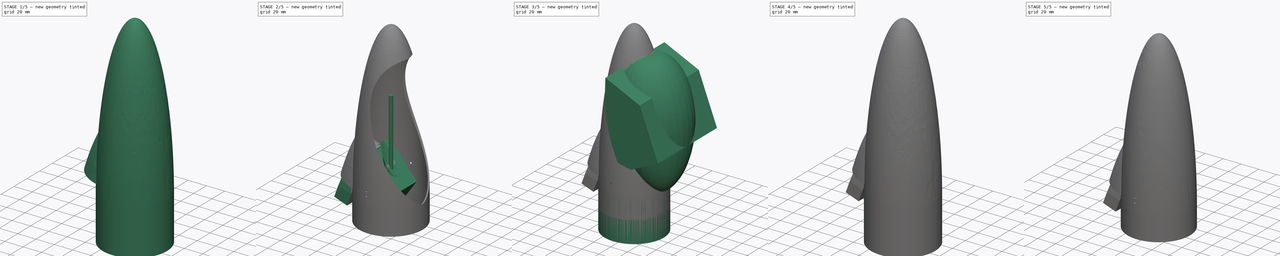
[diagram: build sequence overview — one tinted view per stage of 5, left to right]
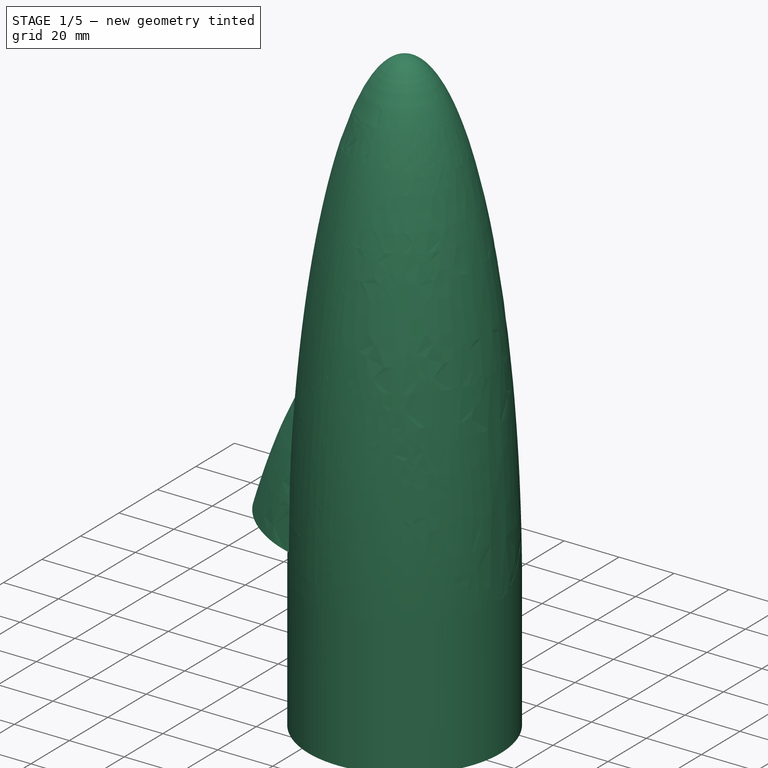
[diagram: stage 1 of 5 — iso view after this stage's code; geometry added in this stage tinted green]
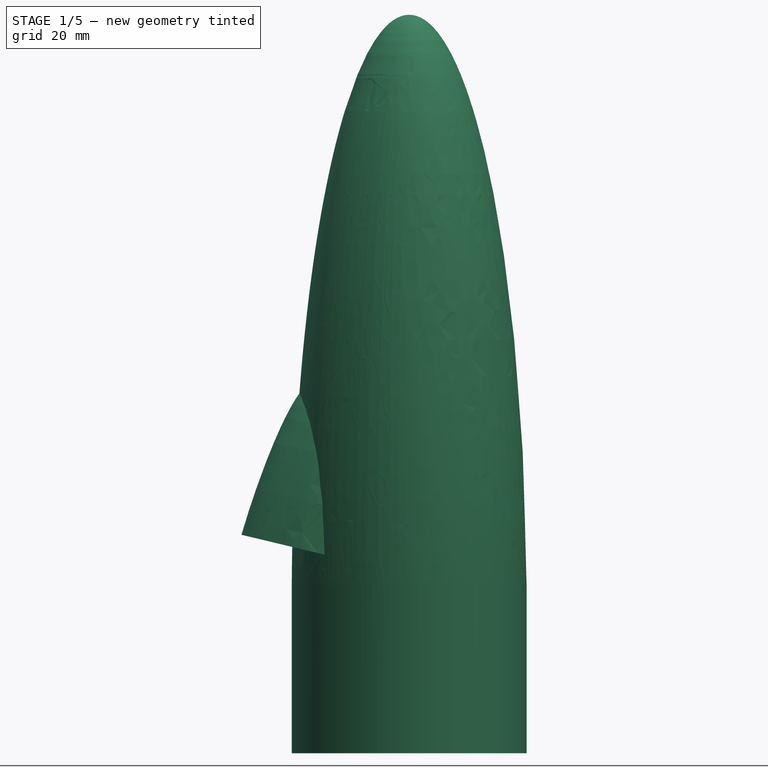
[diagram: stage 1 of 5 — front view after this stage's code; geometry added in this stage tinted green]
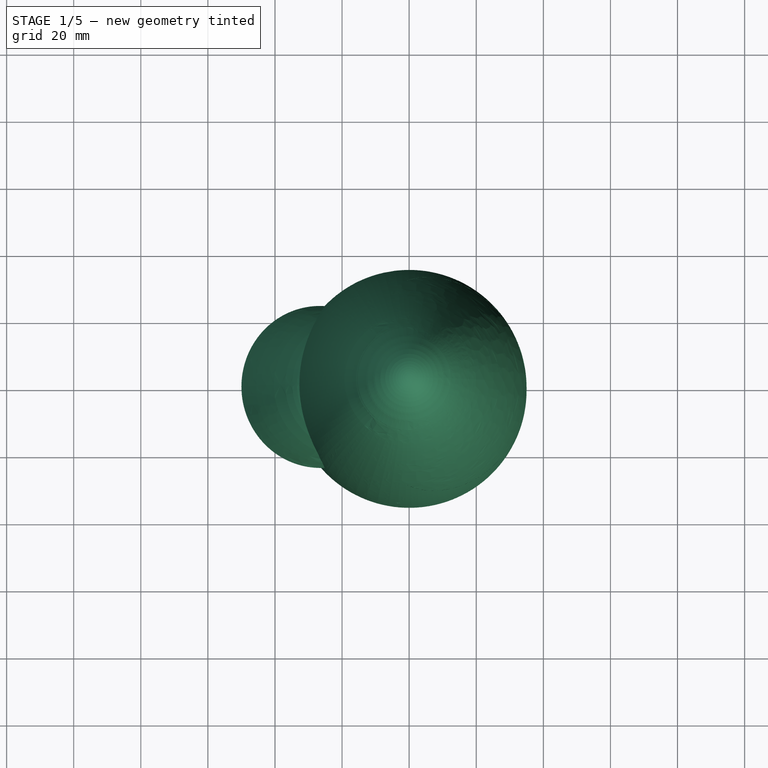
[diagram: stage 1 of 5 — top view after this stage's code; geometry added in this stage tinted green]
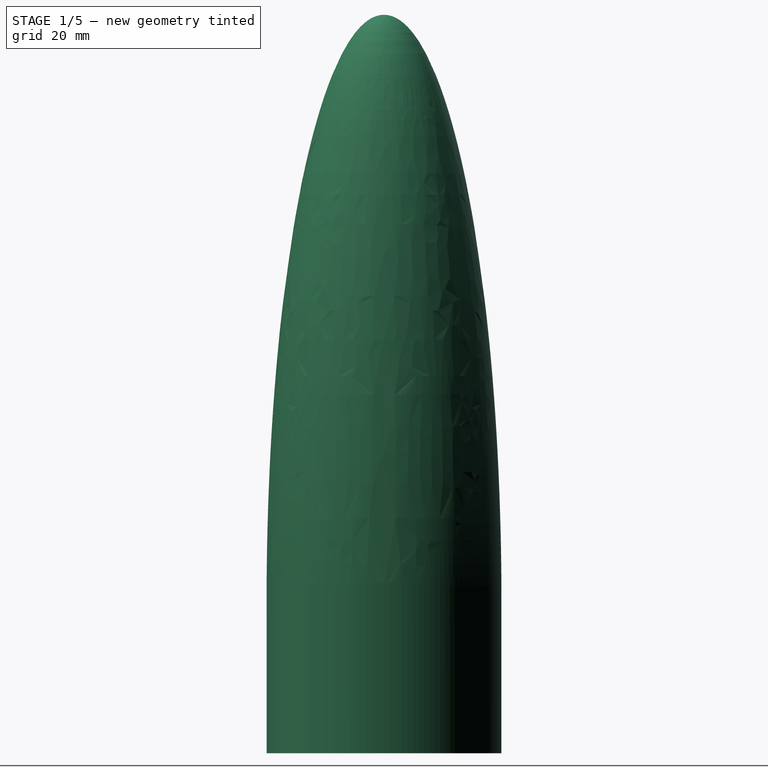
[diagram: stage 1 of 5 — right view after this stage's code; geometry added in this stage tinted green]
FCSTD DOCUMENT  (FreeCAD 0.16R6712 (Git))
Label: Phoenix3D_d68
License: All rights reserved
LicenseURL: http://en.wikipedia.org/wiki/All_rights_reserved
objects: Sketcher::SketchObject×48, PartDesign::Revolution×25, PartDesign::Pad×22, Part::Cut×22, Part::MultiCommon×13, Part::MultiFuse×9, Part::Chamfer×2, Part::Box×2, Part::Cylinder×1, PartDesign::Pocket×1
note: 193 computed .brp shape members not serialized (recipe doc carries the construction recipe); baked Part::Feature solids carry a one-line shape summary decoded from their .brp

FEATURE [Sketcher::SketchObject] Sketch113  label="Kamera"
  Placement = pos=(-46.5248,0,-1.4654) rot=(0.497543,-0.497542,-0.710565;1.90604rad)
  sketch-geometry (7):
    g0: LineSegment StartX=-17.5 StartY=43 StartZ=0 EndX=-14 EndY=79.6998 EndZ=0
    g1: LineSegment StartX=-17.5 StartY=43 StartZ=0 EndX=-17.5 EndY=30 EndZ=0
    g2: LineSegment StartX=-17.5 StartY=30 StartZ=0 EndX=17.5 EndY=30 EndZ=0
    g3: LineSegment StartX=17.5 StartY=30 StartZ=0 EndX=17.5 EndY=43 EndZ=0
    g4: LineSegment StartX=17.5 StartY=43 StartZ=0 EndX=14 EndY=79.6998 EndZ=0
    g5: GeomPoint [constr] X=0 Y=89 Z=0
    g6: ArcOfCircle CenterX=0 CenterY=73.8125 CenterZ=0 NormalX=0 NormalY=0 NormalZ=1 Radius=15.1875 StartAngle=0.398074 EndAngle=2.74352
  constraints (19):
    c: Coincident(g0,g1)
    c: Vertical(g1)
    c: Coincident(g1,g2)
    c: Horizontal(g2)
    c: Coincident(g2,g3)
    c: Vertical(g3)
    c: Coincident(g3,g4)
    c: Symmetric(g3,g0,g-2)
    c: Symmetric(g4,g0,g-2)
    c: PointOnObject(g5,g-2)
    c: DistanceY(g2,g5) = 59
    c: DistanceX(g2,g2) = 35
    c: DistanceY(g3,g3) = 13
    c: DistanceX(g0,g4) = 28
    c: PointOnObject(g6,g-2)
    c: Coincident(g6,g0)
    c: Coincident(g6,g4)
    c: PointOnObject(g5,g6)
    c: DistanceY(g-1,g1) = 30
FEATURE [Sketcher::SketchObject] Sketch114  label="Hülle"
  Placement = pos=(-44.5248,0,-1.4654) rot=(0.497543,-0.497542,-0.710565;1.90604rad)
  sketch-geometry (7):
    g0: LineSegment StartX=-19.5 StartY=45 StartZ=0 EndX=-16 EndY=79.6766 EndZ=0
    g1: LineSegment StartX=-19.5 StartY=45 StartZ=0 EndX=-19.5 EndY=30 EndZ=0
    g2: LineSegment StartX=-19.5 StartY=30 StartZ=0 EndX=19.5 EndY=30 EndZ=0
    g3: LineSegment StartX=19.5 StartY=30 StartZ=0 EndX=19.5 EndY=45 EndZ=0
    g4: LineSegment StartX=19.5 StartY=45 StartZ=0 EndX=16 EndY=79.6766 EndZ=0
    g5: GeomPoint [constr] X=0 Y=91 Z=0
    g6: ArcOfCircle CenterX=0 CenterY=74.0343 CenterZ=0 NormalX=0 NormalY=0 NormalZ=1 Radius=16.9657 StartAngle=0.33903 EndAngle=2.80256
  constraints (19):
    c: Coincident(g0,g1)
    c: Vertical(g1)
    c: Coincident(g1,g2)
    c: Horizontal(g2)
    c: Coincident(g2,g3)
    c: Vertical(g3)
    c: Coincident(g3,g4)
    c: Symmetric(g3,g0,g-2)
    c: Symmetric(g4,g0,g-2)
    c: PointOnObject(g5,g-2)
    c: DistanceY(g2,g5) = 61
    c: DistanceX(g2,g2) = 39
    c: DistanceY(g3,g3) = 15
    c: DistanceX(g0,g4) = 32
    c: PointOnObject(g6,g-2)
    c: Coincident(g6,g0)
    c: Coincident(g6,g4)
    c: PointOnObject(g5,g6)
    c: DistanceY(g-1,g1) = 30
FEATURE [PartDesign::Pad] Pad023  label="Hülle001"
  Length = 19
  Length2 = 100
  Placement = pos=(-44.5248,0,-1.4654) rot=(0.497543,-0.497542,-0.710565;1.90604rad)
  Sketch = -> Sketch114
  Type = 0
FEATURE [PartDesign::Pad] Pad024  label="Kamera001"
  Length = 15
  Length2 = 100
  Placement = pos=(-46.5248,0,-1.4654) rot=(0.497543,-0.497542,-0.710565;1.90604rad)
  Sketch = -> Sketch113
  Type = 0
FEATURE [Part::Cut] Cut016
  Base = -> Pad023
  Tool = -> Pad024
FEATURE [Sketcher::SketchObject] Sketch121
  Placement = pos=(0,0,0) rot=(1,0,0;1.5708rad)
  sketch-geometry (7):
    g0: LineSegment StartX=35 StartY=-10.1123 StartZ=0 EndX=35 EndY=39.8877 EndZ=0
    g1: ArcOfEllipse CenterX=0 CenterY=34.659 CenterZ=0 NormalX=0 NormalY=0 NormalZ=1 MajorRadius=175.341 MinorRadius=35.0156 AngleXU=-1.5708 StartAngle=1.60062 EndAngle=3.14159
    g2: LineSegment [constr] StartX=35.0156 StartY=34.659 StartZ=0 EndX=-35.0156 EndY=34.659 EndZ=0
    g3: GeomPoint [constr] X=0 Y=-137.15 Z=0
    g4: GeomPoint [constr] X=0 Y=206.468 Z=0
    g5: LineSegment StartX=35 StartY=-10.1123 StartZ=0 EndX=0 EndY=-10.1123 EndZ=0
    g6: LineSegment StartX=0 StartY=-10.1123 StartZ=0 EndX=0 EndY=210 EndZ=0
  constraints (14):
    c: Vertical(g0)
    c: DistanceX(g-1,g0) = 35
    c: InternalAlignment(g2,g1)
    c: InternalAlignment(g3,g1)
    c: InternalAlignment(g4,g1)
    c: PointOnObject(g1,g-2)
    c: Coincident(g1,g0)
    c: DistanceY(g0,g0) = 50
    c: Coincident(g0,g5)
    c: Horizontal(g5)
    c: Coincident(g5,g6)
    c: Vertical(g6)
    c: PointOnObject(g1,g-2)
    c: Coincident(g6,g1)
FEATURE [PartDesign::Revolution] Revolution024
  Angle = 360
  Axis = (0,0,1)
  Base = (0,0,0)
  Placement = pos=(0,0,0) rot=(1,0,0;1.5708rad)
  ReferenceAxis = -> Sketch121 [V_Axis]
  Reversed = true
  Sketch = -> Sketch121
FEATURE [Part::MultiCommon] Common013
  Shapes = -> [Revolution024,Cut016]
FEATURE [Sketcher::SketchObject] Sketch122  label="Kamera002"
  Placement = pos=(-46.5248,0,-1.4654) rot=(0.497543,-0.497542,-0.710565;1.90604rad)
  sketch-geometry (7):
    g0: LineSegment StartX=-17.5 StartY=43 StartZ=0 EndX=-14 EndY=79.6998 EndZ=0
    g1: LineSegment StartX=-17.5 StartY=43 StartZ=0 EndX=-17.5 EndY=30 EndZ=0
    g2: LineSegment StartX=-17.5 StartY=30 StartZ=0 EndX=17.5 EndY=30 EndZ=0
    g3: LineSegment StartX=17.5 StartY=30 StartZ=0 EndX=17.5 EndY=43 EndZ=0
    g4: LineSegment StartX=17.5 StartY=43 StartZ=0 EndX=14 EndY=79.6998 EndZ=0
    g5: GeomPoint [constr] X=0 Y=89 Z=0
    g6: ArcOfCircle CenterX=0 CenterY=73.8125 CenterZ=0 NormalX=0 NormalY=0 NormalZ=1 Radius=15.1875 StartAngle=0.398074 EndAngle=2.74352
  constraints (19):
    c: Coincident(g0,g1)
    c: Vertical(g1)
    c: Coincident(g1,g2)
    c: Horizontal(g2)
    c: Coincident(g2,g3)
    c: Vertical(g3)
    c: Coincident(g3,g4)
    c: Symmetric(g3,g0,g-2)
    c: Symmetric(g4,g0,g-2)
    c: PointOnObject(g5,g-2)
    c: DistanceY(g2,g5) = 59
    c: DistanceX(g2,g2) = 35
    c: DistanceY(g3,g3) = 13
    c: DistanceX(g0,g4) = 28
    c: PointOnObject(g6,g-2)
    c: Coincident(g6,g0)
    c: Coincident(g6,g4)
    c: PointOnObject(g5,g6)
    c: DistanceY(g-1,g1) = 30
FEATURE [PartDesign::Pad] Pad025  label="Kamera003"
  Length = 15
  Length2 = 100
  Placement = pos=(-46.5248,0,-1.4654) rot=(0.497543,-0.497542,-0.710565;1.90604rad)
  Sketch = -> Sketch122
  Type = 0
FEATURE [Sketcher::SketchObject] Sketch116
  Placement = pos=(0,0,0) rot=(1,0,0;1.5708rad)
  sketch-geometry (11):
    g0: LineSegment [constr] StartX=-7.74867 StartY=127.743 StartZ=0 EndX=-40.5222 EndY=-9.14035 EndZ=0
    g1: ArcOfEllipse CenterX=-42.8098 CenterY=52.8668 CenterZ=0 NormalX=0 NormalY=0 NormalZ=1 MajorRadius=49.1637 MinorRadius=7.5 AngleXU=-1.8592 StartAngle=3.14159 EndAngle=4.71239
    g2: LineSegment [constr] StartX=-56.793 StartY=5.73366 StartZ=0 EndX=-28.8265 EndY=100 EndZ=0
    g3: LineSegment [constr] StartX=-35.6195 StartY=50.7337 StartZ=0 EndX=-50 EndY=55 EndZ=0
    g4: GeomPoint [constr] X=-56.6294 Y=6.28533 Z=0
    g5: GeomPoint [constr] X=-28.9902 Y=99.4483 Z=0
    g6: LineSegment StartX=-28.8265 StartY=100 StartZ=0 EndX=-31.3645 EndY=97.8731 EndZ=0
    g7: LineSegment StartX=-48.8095 StartY=55 StartZ=0 EndX=-50 EndY=55 EndZ=0
    g8: LineSegment StartX=-31.3645 StartY=97.8731 StartZ=0 EndX=-37.4076 EndY=87.6089 EndZ=0
    g9: LineSegment StartX=-37.4076 StartY=87.6089 StartZ=0 EndX=-41.8392 EndY=75.1542 EndZ=0
    g10: LineSegment StartX=-41.8392 StartY=75.1542 StartZ=0 EndX=-48.8095 EndY=55 EndZ=0
  constraints (14):
    c: InternalAlignment(g2-g5 -> g1) x4
    c: Coincident(g1,g2)
    c: Coincident(g1,g3)
    c: Coincident(g6,g1)
    c: Coincident(g7,g1)
    c: Horizontal(g7)
    c: DistanceY(g-1,g1) = 55
    c: DistanceX(g1,g-1) = 50
    c: DistanceY(g-1,g1) = 100
    c: Coincident(g6,g8)
    c: Coincident(g8,g9)
    c: Coincident(g9,g10)
    c: Coincident(g10,g7)
    c: Distance(g3) = 15
FEATURE [Sketcher::SketchObject] Sketch123
  Placement = pos=(0,0,0) rot=(1,0,0;1.5708rad)
  sketch-geometry (7):
    g0: LineSegment StartX=35 StartY=-10.1123 StartZ=0 EndX=35 EndY=39.8877 EndZ=0
    g1: ArcOfEllipse CenterX=0 CenterY=34.659 CenterZ=0 NormalX=0 NormalY=0 NormalZ=1 MajorRadius=175.341 MinorRadius=35.0156 AngleXU=-1.5708 StartAngle=1.60062 EndAngle=3.14159
    g2: LineSegment [constr] StartX=35.0156 StartY=34.659 StartZ=0 EndX=-35.0156 EndY=34.659 EndZ=0
    g3: GeomPoint [constr] X=0 Y=-137.15 Z=0
    g4: GeomPoint [constr] X=0 Y=206.468 Z=0
    g5: LineSegment StartX=35 StartY=-10.1123 StartZ=0 EndX=0 EndY=-10.1123 EndZ=0
    g6: LineSegment StartX=0 StartY=-10.1123 StartZ=0 EndX=0 EndY=210 EndZ=0
  constraints (14):
    c: Vertical(g0)
    c: DistanceX(g-1,g0) = 35
    c: InternalAlignment(g2,g1)
    c: InternalAlignment(g3,g1)
    c: InternalAlignment(g4,g1)
    c: PointOnObject(g1,g-2)
    c: Coincident(g1,g0)
    c: DistanceY(g0,g0) = 50
    c: Coincident(g0,g5)
    c: Horizontal(g5)
    c: Coincident(g5,g6)
    c: Vertical(g6)
    c: PointOnObject(g1,g-2)
    c: Coincident(g6,g1)
FEATURE [PartDesign::Revolution] Revolution025
  Angle = 360
  Axis = (0,0,1)
  Base = (0,0,0)
  Placement = pos=(0,0,0) rot=(1,0,0;1.5708rad)
  ReferenceAxis = -> Sketch123 [V_Axis]
  Reversed = true
  Sketch = -> Sketch123
FEATURE [PartDesign::Revolution] Revolution026
  Angle = 360
  Axis = (-32.7735,0,-136.884)
  Base = (-7.74867,0,127.743)
  Placement = pos=(0,0,0) rot=(1,0,0;1.5708rad)
  ReferenceAxis = -> Sketch116 [Axis0]
  Reversed = true
  Sketch = -> Sketch116
FEATURE [Sketcher::SketchObject] Sketch125
  Placement = pos=(-40.6116,0.000163929,14.7812) rot=(0.497542,-0.497545,-0.710564;1.90603rad)
  Support = -> Common013 [Face3]
  sketch-geometry (5):
    g0: LineSegment StartX=-10 StartY=59.2969 StartZ=0 EndX=10 EndY=59.2969 EndZ=0
    g1: LineSegment StartX=10 StartY=59.2969 StartZ=0 EndX=10 EndY=29.2969 EndZ=0
    g2: LineSegment StartX=10 StartY=29.2969 StartZ=0 EndX=-10 EndY=29.2969 EndZ=0
    g3: LineSegment StartX=-10 StartY=29.2969 StartZ=0 EndX=-10 EndY=59.2969 EndZ=0
    g4: Circle CenterX=0 CenterY=67.7812 CenterZ=0 NormalX=0 NormalY=0 NormalZ=1 Radius=1.5
  constraints (13):
    c: Coincident(g0,g1)
    c: Coincident(g1,g2)
    c: Coincident(g2,g3)
    c: Coincident(g3,g0)
    c: Horizontal(g0)
    c: Horizontal(g2)
    c: Vertical(g1)
    c: Vertical(g3)
    c: DistanceY(g1,g1) = 30
    c: DistanceX(g2,g2) = 20
    c: Symmetric(g1,g2,g-2)
    c: PointOnObject(g4,g-2)
    c: Radius(g4) = 1.5
FEATURE [PartDesign::Pocket] Pocket
  Length = 5
  Sketch = -> Sketch125
  Type = 0
FEATURE [Sketcher::SketchObject] Sketch135
  Placement = pos=(0,0,0) rot=(1,0,0;1.5708rad)
  sketch-geometry (20):
    g0: LineSegment StartX=33.5 StartY=40 StartZ=0 EndX=33.5 EndY=30 EndZ=0
    g1: LineSegment StartX=35 StartY=-10 StartZ=0 EndX=35 EndY=40 EndZ=0
    g2: LineSegment StartX=33.5 StartY=30 StartZ=0 EndX=34 EndY=0 EndZ=0
    g3: LineSegment [constr] StartX=30.3319 StartY=40 StartZ=0 EndX=34.2664 EndY=40 EndZ=0
    g4: ArcOfEllipse CenterX=0 CenterY=34.6846 CenterZ=0 NormalX=0 NormalY=0 NormalZ=1 MajorRadius=175.315 MinorRadius=35.0161 AngleXU=-1.5708 StartAngle=1.60112 EndAngle=3.14159
    g5: LineSegment [constr] StartX=0 StartY=-140.631 StartZ=0 EndX=0 EndY=210 EndZ=0
    g6: LineSegment [constr] StartX=35.0161 StartY=34.6846 StartZ=0 EndX=-35.0161 EndY=34.6846 EndZ=0
    g7: GeomPoint [constr] X=0 Y=-137.098 Z=0
    g8: GeomPoint [constr] X=0 Y=206.467 Z=0
    g9: ArcOfCircle CenterX=0 CenterY=193 CenterZ=0 NormalX=0 NormalY=0 NormalZ=1 Radius=17 StartAngle=1.5708 EndAngle=1.5708
    g10: GeomPoint [constr] X=-1e-12 Y=210 Z=0
    g11: ArcOfCircle CenterX=0 CenterY=193 CenterZ=0 NormalX=0 NormalY=0 NormalZ=1 Radius=15 StartAngle=1.5708 EndAngle=1.5708
    g12: ArcOfEllipse CenterX=0 CenterY=34.6846 CenterZ=0 NormalX=0 NormalY=0 NormalZ=1 MajorRadius=173.315 MinorRadius=33.5158 AngleXU=1.5708 StartAngle=4.74306 EndAngle=6.28319
    g13: LineSegment [constr] StartX=0 StartY=208 StartZ=0 EndX=0 EndY=-138.631 EndZ=0
    g14: LineSegment [constr] StartX=-33.5158 StartY=34.6846 StartZ=0 EndX=33.5158 EndY=34.6846 EndZ=0
    g15: GeomPoint [constr] X=0 Y=204.728 Z=0
    g16: GeomPoint [constr] X=0 Y=-135.359 Z=0
    g17: LineSegment StartX=0 StartY=210 StartZ=0 EndX=0 EndY=208 EndZ=0
    g18: LineSegment StartX=34 StartY=0 StartZ=0 EndX=34 EndY=-10 EndZ=0
    g19: LineSegment StartX=34 StartY=-10 StartZ=0 EndX=35 EndY=-10 EndZ=0
  constraints (40):
    c: Vertical(g0)
    c: Vertical(g1)
    c: DistanceX(g-1,g1) = 35
    c: Coincident(g0,g2)
    c: DistanceY(g2,g0) = 30
    c: Horizontal(g3)
    c: InternalAlignment(g5-g8 -> g4) x4
    c: Vertical(g5)
    c: PointOnObject(g4,g-2)
    c: Coincident(g4,g1)
    c: PointOnObject(g9,g-2)
    c: PointOnObject(g9,g-2)
    c: Coincident(g4,g9)
    c: PointOnObject(g10,g4)
    c: PointOnObject(g10,g9)
    c: Tangent(g4,g9,g10) = -1.5708
    c: DistanceY(g-1,g5) = 210
    c: PointOnObject(g1,g3)
    c: PointOnObject(g0,g3)
    c: DistanceY(g-1,g3) = 40
    c: Radius(g9) = 17
    c: Coincident(g11,g9)
    c: PointOnObject(g11,g-2)
    c: Radius(g11) = 15
    c: InternalAlignment(g13-g16 -> g12) x4
    c: Vertical(g13)
    c: Coincident(g12,g4)
    c: Coincident(g12,g11)
    c: Coincident(g12,g0)
    c: DistanceX(g0,g1) = 1.5
    c: Coincident(g17,g5)
    c: Coincident(g17,g11)
    c: Distance(g11,g4) = 2
    c: DistanceY(g1,g1) = 50
    c: Coincident(g18,g2)
    c: Vertical(g18)
    c: Coincident(g19,g18)
    c: Coincident(g19,g1)
    c: Horizontal(g19)
    c: DistanceX(g19,g19) = 1
FEATURE [PartDesign::Revolution] Revolution031  label="Grundform008"
  Angle = 360
  Axis = (0,0,1)
  Base = (0,0,0)
  Placement = pos=(0,0,0) rot=(1,0,0;1.5708rad)
  ReferenceAxis = -> Sketch135 [V_Axis]
  Reversed = true
  Sketch = -> Sketch135
FEATURE [Sketcher::SketchObject] Sketch136
  Placement = pos=(0,0,0) rot=(1,0,0;1.5708rad)
  sketch-geometry (7):
    g0: LineSegment [constr] StartX=16.3825 StartY=177.294 StartZ=0 EndX=45 EndY=-46.1806 EndZ=0
    g1: ArcOfEllipse CenterX=25 CenterY=110 CenterZ=0 NormalX=0 NormalY=0 NormalZ=1 MajorRadius=72.0329 MinorRadius=38 AngleXU=1.5708 StartAngle=3.37973 EndAngle=6.52132
    g2: LineSegment [constr] StartX=25 StartY=182.033 StartZ=0 EndX=25 EndY=37.9671 EndZ=0
    g3: LineSegment [constr] StartX=-13 StartY=110 StartZ=0 EndX=63 EndY=110 EndZ=0
    g4: GeomPoint [constr] X=25 Y=171.194 Z=0
    g5: GeomPoint [constr] X=25 Y=48.8058 Z=0
    g6: LineSegment StartX=16.036 StartY=180 StartZ=0 EndX=33.964 EndY=40 EndZ=0
  constraints (12):
    c: DistanceX(g-1,g0) = 45
    c: InternalAlignment(g2-g5 -> g1) x4
    c: PointOnObject(g1,g0)
    c: PointOnObject(g1,g0)
    c: PointOnObject(g1,g0)
    c: Vertical(g2)
    c: DistanceY(g1,g1) = 140
    c: DistanceY(g-1,g1) = 180
    c: DistanceX(g1,g3) = 38
    c: Coincident(g6,g1)
    c: Coincident(g6,g1)
    c: DistanceX(g-1,g1) = 25
FEATURE [PartDesign::Revolution] Revolution032  label="Ei009"
  Angle = 360
  Axis = (28.6175,0,-223.475)
  Base = (16.3825,0,177.294)
  Placement = pos=(0,0,0) rot=(1,0,0;1.5708rad)
  ReferenceAxis = -> Sketch136 [Axis0]
  Sketch = -> Sketch136
FEATURE [Part::Cut] Cut024  label="G-Außenform003"
  Base = -> Revolution031
  Tool = -> Revolution032
FEATURE [Sketcher::SketchObject] Sketch137
  Placement = pos=(-17.101,46.9846,-1) rot=(0.970288,0.171088,0.171088;1.60095rad)
  sketch-geometry (3):
    g0: Circle CenterX=0 CenterY=55 CenterZ=0 NormalX=0 NormalY=0 NormalZ=1 Radius=2
    g1: Circle CenterX=10 CenterY=60 CenterZ=0 NormalX=0 NormalY=0 NormalZ=1 Radius=1
    g2: Circle CenterX=-10 CenterY=60 CenterZ=0 NormalX=0 NormalY=0 NormalZ=1 Radius=1
  constraints (8):
    c: Symmetric(g1,g2,g-2)
    c: Equal(g2,g1)
    c: Radius(g1) = 1
    c: DistanceX(g2,g1) = 20
    c: PointOnObject(g0,g-2)
    c: DistanceY(g0,g2) = 5
    c: Radius(g0) = 2
    c: DistanceY(g-1,g1) = 60
FEATURE [PartDesign::Pad] Pad032  label="Tommy Timer003"
  Length = 20
  Length2 = 100
  Placement = pos=(-17.101,46.9846,-1) rot=(0.970288,0.171088,0.171088;1.60095rad)
  Sketch = -> Sketch137
  Type = 0
FEATURE [Sketcher::SketchObject] Sketch138
  Placement = pos=(-103,-40,54) rot=(0.57735,0.57735,-0.57735;2.0944rad)
  sketch-geometry (2):
    g0: Circle CenterX=-2.5 CenterY=100 CenterZ=0 NormalX=0 NormalY=0 NormalZ=1 Radius=1
    g1: Circle CenterX=2.5 CenterY=100 CenterZ=0 NormalX=0 NormalY=0 NormalZ=1 Radius=1
  constraints (5):
    c: Symmetric(g0,g1,g-2)
    c: DistanceY(g-1,g1) = 100
    c: Radius(g1) = 1
    c: Equal(g0,g1)
    c: DistanceX(g0,g-1) = 2.5
FEATURE [PartDesign::Pad] Pad033  label="Gummihaken003"
  Length = 20
  Length2 = 100
  Placement = pos=(-103,-40,54) rot=(0.57735,0.57735,-0.57735;2.0944rad)
  Reversed = true
  Sketch = -> Sketch138
  Type = 0
FEATURE [Part::MultiFuse] Fusion013
  Shapes = -> [Pad032,Pad033]
FEATURE [Part::Cut] Cut025  label="H-Außenform003"
  Base = -> Cut024
  Tool = -> Fusion013
FEATURE [Part::Box] Box004  label="Würfel004"
  Height = 25
  Length = 100
  Placement = pos=(-50,-50,-10) rot=(0,0,1;0rad)
  Width = 100
FEATURE [Part::Cut] Cut026  label="Casing001"
  Base = -> Cut025
  Tool = -> Box004
FEATURE [Part::Cut] Cut
  Base = -> Cut026
  Tool = -> Pad025
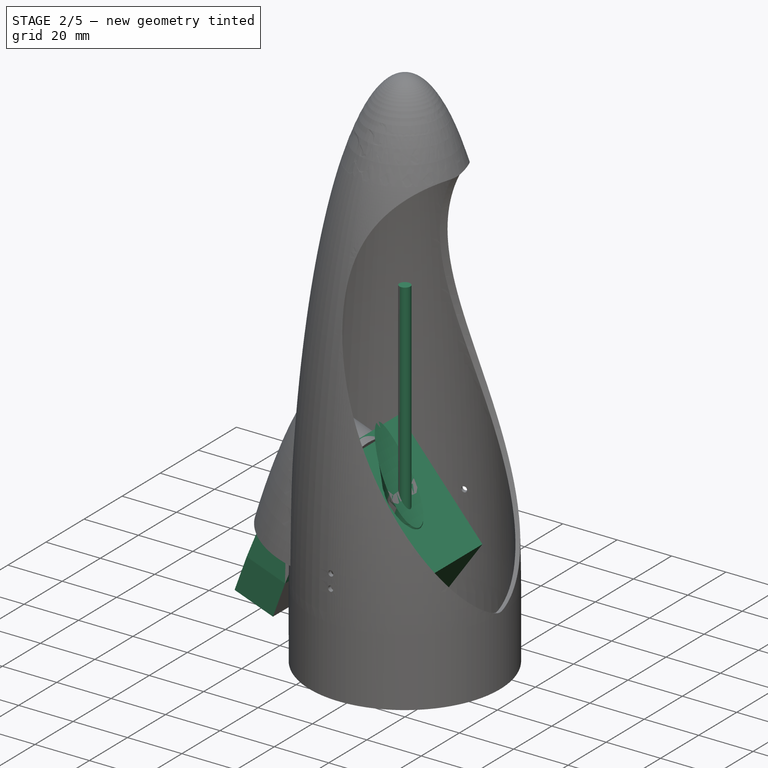
[diagram: stage 2 of 5 — iso view after this stage's code; geometry added in this stage tinted green]
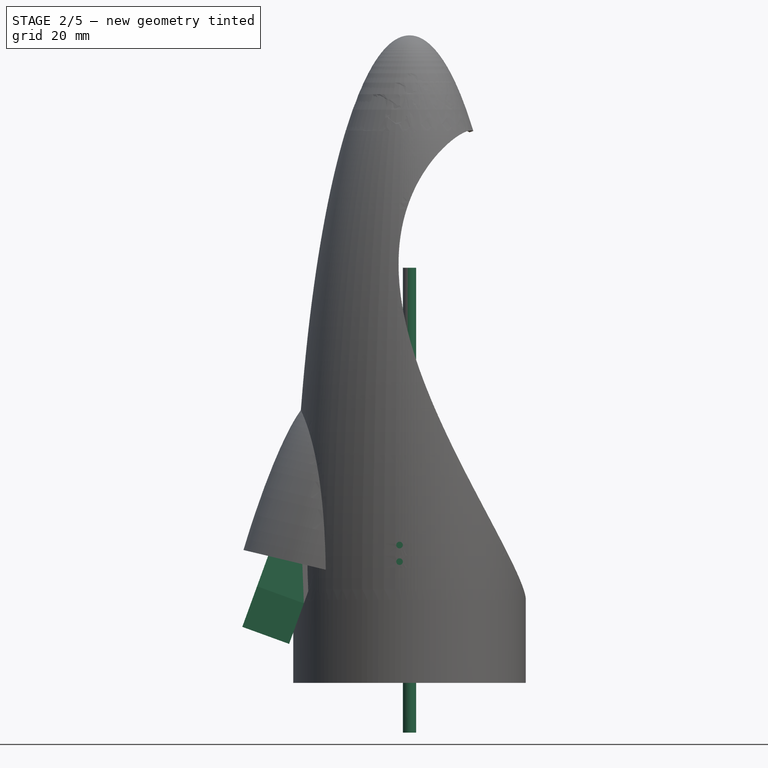
[diagram: stage 2 of 5 — front view after this stage's code; geometry added in this stage tinted green]
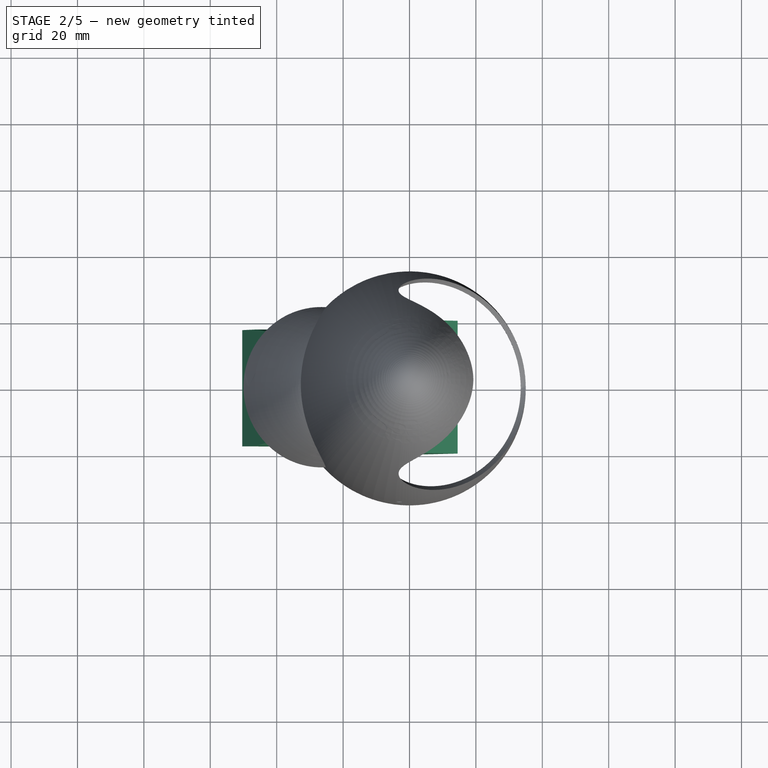
[diagram: stage 2 of 5 — top view after this stage's code; geometry added in this stage tinted green]
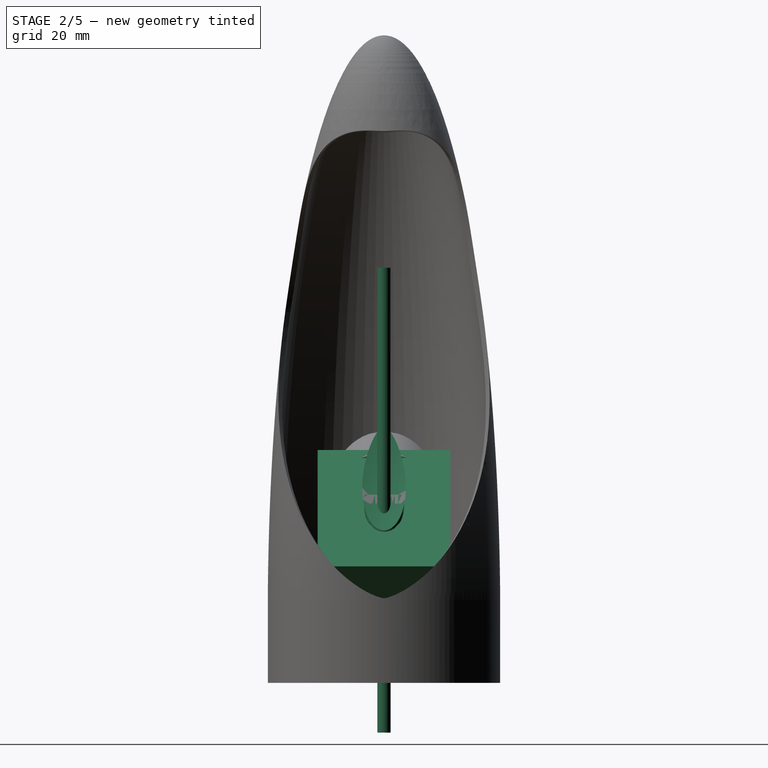
[diagram: stage 2 of 5 — right view after this stage's code; geometry added in this stage tinted green]
FEATURE [Sketcher::SketchObject] Sketch106
  Placement = pos=(0,0,0) rot=(1,0,0;1.5708rad)
  sketch-geometry (4):
    g0: ArcOfCircle CenterX=203.192 CenterY=46.999 CenterZ=0 NormalX=0 NormalY=0 NormalZ=1 Radius=198.215 StartAngle=2.79151 EndAngle=3.12645
    g1: LineSegment StartX=5 StartY=50 StartZ=0 EndX=0 EndY=50 EndZ=0
    g2: LineSegment StartX=17 StartY=114.981 StartZ=0 EndX=0 EndY=114.981 EndZ=0
    g3: LineSegment StartX=0 StartY=114.981 StartZ=0 EndX=0 EndY=50 EndZ=0
  constraints (11):
    c: Coincident(g1,g0)
    c: PointOnObject(g1,g-2)
    c: Horizontal(g1)
    c: DistanceX(g1,g1) = 5
    c: Coincident(g0,g2)
    c: Coincident(g2,g3)
    c: Coincident(g3,g1)
    c: Vertical(g3)
    c: Horizontal(g2)
    c: DistanceX(g2,g2) = 17
    c: DistanceY(g-1,g1) = 50
FEATURE [PartDesign::Revolution] Revolution018
  Angle = 360
  Axis = (0,0,1)
  Base = (0,0,0)
  Placement = pos=(0,0,0) rot=(1,0,0;1.5708rad)
  ReferenceAxis = -> Sketch106 [V_Axis]
  Reversed = true
  Sketch = -> Sketch106
FEATURE [Sketcher::SketchObject] Sketch107
  Placement = pos=(0,0,0) rot=(1,0,0;1.5708rad)
  sketch-geometry (7):
    g0: LineSegment [constr] StartX=16.4738 StartY=177.295 StartZ=0 EndX=45 EndY=-46.1808 EndZ=0
    g1: ArcOfEllipse CenterX=25 CenterY=110.5 CenterZ=0 NormalX=0 NormalY=0 NormalZ=1 MajorRadius=72.4553 MinorRadius=39 AngleXU=1.5708 StartAngle=3.37444 EndAngle=6.51603
    g2: LineSegment [constr] StartX=25 StartY=182.955 StartZ=0 EndX=25 EndY=38.0447 EndZ=0
    g3: LineSegment [constr] StartX=-14 StartY=110.5 StartZ=0 EndX=64 EndY=110.5 EndZ=0
    g4: GeomPoint [constr] X=25 Y=171.564 Z=0
    g5: GeomPoint [constr] X=25 Y=49.4363 Z=0
    g6: LineSegment StartX=16.0008 StartY=181 StartZ=0 EndX=33.9992 EndY=40 EndZ=0
  constraints (12):
    c: DistanceX(g-1,g0) = 45
    c: InternalAlignment(g2-g5 -> g1) x4
    c: PointOnObject(g1,g0)
    c: PointOnObject(g1,g0)
    c: PointOnObject(g1,g0)
    c: Vertical(g2)
    c: DistanceY(g1,g1) = 141
    c: DistanceY(g-1,g1) = 181
    c: DistanceX(g1,g3) = 39
    c: Coincident(g6,g1)
    c: Coincident(g6,g1)
    c: DistanceX(g-1,g1) = 25
FEATURE [PartDesign::Revolution] Revolution019  label="Ei006"
  Angle = 360
  Axis = (28.5262,0,-223.476)
  Base = (16.4738,0,177.295)
  Placement = pos=(0,0,0) rot=(1,0,0;1.5708rad)
  ReferenceAxis = -> Sketch107 [Axis0]
  Sketch = -> Sketch107
FEATURE [Part::Cut] Cut010
  Base = -> Revolution018
  Tool = -> Revolution019
FEATURE [Sketcher::SketchObject] Sketch108
  Placement = pos=(0,0,0) rot=(1,0,0;1.5708rad)
  sketch-geometry (4):
    g0: LineSegment StartX=-30.3888 StartY=129.516 StartZ=0 EndX=-33.8293 EndY=94.9462 EndZ=0
    g1: LineSegment StartX=-33.8293 StartY=94.9462 StartZ=0 EndX=29.4112 EndY=104.449 EndZ=0
    g2: LineSegment StartX=29.4112 StartY=104.449 StartZ=0 EndX=-19.248 EndY=139.182 EndZ=0
    g3: LineSegment StartX=-19.248 StartY=139.182 StartZ=0 EndX=-30.3888 EndY=129.516 EndZ=0
  constraints (4):
    c: Coincident(g0,g1)
    c: Coincident(g1,g2)
    c: Coincident(g2,g3)
    c: Coincident(g3,g0)
FEATURE [PartDesign::Pad] Pad017
  Length = 30
  Length2 = 100
  Midplane = true
  Placement = pos=(0,0,0) rot=(1,0,0;1.5708rad)
  Sketch = -> Sketch108
  Type = 0
FEATURE [Part::Cut] Cut011
  Base = -> Cut010
  Tool = -> Pad017
FEATURE [Sketcher::SketchObject] Sketch109
  Placement = pos=(0,0,0) rot=(1,0,0;1.5708rad)
  sketch-geometry (3):
    g0: LineSegment StartX=-15.9682 StartY=85.1155 StartZ=0 EndX=14.5052 EndY=50.0547 EndZ=0
    g1: LineSegment StartX=14.5052 StartY=50.0547 StartZ=0 EndX=-4.82737 EndY=22.5303 EndZ=0
    g2: LineSegment StartX=-4.82737 StartY=22.5303 StartZ=0 EndX=-15.9682 EndY=85.1155 EndZ=0
  constraints (3):
    c: Coincident(g0,g1)
    c: Coincident(g1,g2)
    c: Coincident(g2,g0)
FEATURE [PartDesign::Pad] Pad018
  Length = 40
  Length2 = 100
  Midplane = true
  Placement = pos=(0,0,0) rot=(1,0,0;1.5708rad)
  Sketch = -> Sketch109
  Type = 0
FEATURE [Part::Cylinder] Cylinder  label="Zylinder"
  Angle = 360
  Height = 140
  Radius = 2
FEATURE [Sketcher::SketchObject] Sketch124  label="Kamera004"
  Placement = pos=(-46.5248,0,-1.4654) rot=(0.497543,-0.497542,-0.710565;1.90604rad)
  sketch-geometry (7):
    g0: LineSegment StartX=-17.5 StartY=43 StartZ=0 EndX=-14 EndY=79.6998 EndZ=0
    g1: LineSegment StartX=-17.5 StartY=43 StartZ=0 EndX=-17.5 EndY=30 EndZ=0
    g2: LineSegment StartX=-17.5 StartY=30 StartZ=0 EndX=17.5 EndY=30 EndZ=0
    g3: LineSegment StartX=17.5 StartY=30 StartZ=0 EndX=17.5 EndY=43 EndZ=0
    g4: LineSegment StartX=17.5 StartY=43 StartZ=0 EndX=14 EndY=79.6998 EndZ=0
    g5: GeomPoint [constr] X=0 Y=89 Z=0
    g6: ArcOfCircle CenterX=0 CenterY=73.8125 CenterZ=0 NormalX=0 NormalY=0 NormalZ=1 Radius=15.1875 StartAngle=0.398074 EndAngle=2.74352
  constraints (19):
    c: Coincident(g0,g1)
    c: Vertical(g1)
    c: Coincident(g1,g2)
    c: Horizontal(g2)
    c: Coincident(g2,g3)
    c: Vertical(g3)
    c: Coincident(g3,g4)
    c: Symmetric(g3,g0,g-2)
    c: Symmetric(g4,g0,g-2)
    c: PointOnObject(g5,g-2)
    c: DistanceY(g2,g5) = 59
    c: DistanceX(g2,g2) = 35
    c: DistanceY(g3,g3) = 13
    c: DistanceX(g0,g4) = 28
    c: PointOnObject(g6,g-2)
    c: Coincident(g6,g0)
    c: Coincident(g6,g4)
    c: PointOnObject(g5,g6)
    c: DistanceY(g-1,g1) = 30
FEATURE [PartDesign::Pad] Pad026  label="Kamera005"
  Length = 15
  Length2 = 100
  Placement = pos=(-46.5248,0,-1.4654) rot=(0.497543,-0.497542,-0.710565;1.90604rad)
  Sketch = -> Sketch124
  Type = 0
FEATURE [Part::Cut] Cut018  label="Abdeckung"
  Base = -> Revolution026
  Tool = -> Revolution025
FEATURE [Part::MultiFuse] Fusion008  label="Kamerahalterung"
  Shapes = -> [Pocket,Cut018]
FEATURE [Sketcher::SketchObject] Sketch131
  Placement = pos=(0,0,0) rot=(1,0,0;1.5708rad)
  sketch-geometry (20):
    g0: LineSegment StartX=33.5 StartY=40 StartZ=0 EndX=33.5 EndY=30 EndZ=0
    g1: LineSegment StartX=35 StartY=-10 StartZ=0 EndX=35 EndY=40 EndZ=0
    g2: LineSegment StartX=33.5 StartY=30 StartZ=0 EndX=34 EndY=0 EndZ=0
    g3: LineSegment [constr] StartX=30.3319 StartY=40 StartZ=0 EndX=34.2664 EndY=40 EndZ=0
    g4: ArcOfEllipse CenterX=0 CenterY=34.6846 CenterZ=0 NormalX=0 NormalY=0 NormalZ=1 MajorRadius=175.315 MinorRadius=35.0161 AngleXU=-1.5708 StartAngle=1.60112 EndAngle=3.14159
    g5: LineSegment [constr] StartX=0 StartY=-140.631 StartZ=0 EndX=0 EndY=210 EndZ=0
    g6: LineSegment [constr] StartX=35.0161 StartY=34.6846 StartZ=0 EndX=-35.0161 EndY=34.6846 EndZ=0
    g7: GeomPoint [constr] X=0 Y=-137.098 Z=0
    g8: GeomPoint [constr] X=0 Y=206.467 Z=0
    g9: ArcOfCircle CenterX=0 CenterY=193 CenterZ=0 NormalX=0 NormalY=0 NormalZ=1 Radius=17 StartAngle=1.5708 EndAngle=1.5708
    g10: GeomPoint [constr] X=-1e-12 Y=210 Z=0
    g11: ArcOfCircle CenterX=0 CenterY=193 CenterZ=0 NormalX=0 NormalY=0 NormalZ=1 Radius=15 StartAngle=1.5708 EndAngle=1.5708
    g12: ArcOfEllipse CenterX=0 CenterY=34.6846 CenterZ=0 NormalX=0 NormalY=0 NormalZ=1 MajorRadius=173.315 MinorRadius=33.5158 AngleXU=1.5708 StartAngle=4.74306 EndAngle=6.28319
    g13: LineSegment [constr] StartX=0 StartY=208 StartZ=0 EndX=0 EndY=-138.631 EndZ=0
    g14: LineSegment [constr] StartX=-33.5158 StartY=34.6846 StartZ=0 EndX=33.5158 EndY=34.6846 EndZ=0
    g15: GeomPoint [constr] X=0 Y=204.728 Z=0
    g16: GeomPoint [constr] X=0 Y=-135.359 Z=0
    g17: LineSegment StartX=0 StartY=210 StartZ=0 EndX=0 EndY=208 EndZ=0
    g18: LineSegment StartX=34 StartY=0 StartZ=0 EndX=34 EndY=-10 EndZ=0
    g19: LineSegment StartX=34 StartY=-10 StartZ=0 EndX=35 EndY=-10 EndZ=0
  constraints (40):
    c: Vertical(g0)
    c: Vertical(g1)
    c: DistanceX(g-1,g1) = 35
    c: Coincident(g0,g2)
    c: DistanceY(g2,g0) = 30
    c: Horizontal(g3)
    c: InternalAlignment(g5-g8 -> g4) x4
    c: Vertical(g5)
    c: PointOnObject(g4,g-2)
    c: Coincident(g4,g1)
    c: PointOnObject(g9,g-2)
    c: PointOnObject(g9,g-2)
    c: Coincident(g4,g9)
    c: PointOnObject(g10,g4)
    c: PointOnObject(g10,g9)
    c: Tangent(g4,g9,g10) = -1.5708
    c: DistanceY(g-1,g5) = 210
    c: PointOnObject(g1,g3)
    c: PointOnObject(g0,g3)
    c: DistanceY(g-1,g3) = 40
    c: Radius(g9) = 17
    c: Coincident(g11,g9)
    c: PointOnObject(g11,g-2)
    c: Radius(g11) = 15
    c: InternalAlignment(g13-g16 -> g12) x4
    c: Vertical(g13)
    c: Coincident(g12,g4)
    c: Coincident(g12,g11)
    c: Coincident(g12,g0)
    c: DistanceX(g0,g1) = 1.5
    c: Coincident(g17,g5)
    c: Coincident(g17,g11)
    c: Distance(g11,g4) = 2
    c: DistanceY(g1,g1) = 50
    c: Coincident(g18,g2)
    c: Vertical(g18)
    c: Coincident(g19,g18)
    c: Coincident(g19,g1)
    c: Horizontal(g19)
    c: DistanceX(g19,g19) = 1
FEATURE [PartDesign::Revolution] Revolution029  label="Grundform007"
  Angle = 360
  Axis = (0,0,1)
  Base = (0,0,0)
  Placement = pos=(0,0,0) rot=(1,0,0;1.5708rad)
  ReferenceAxis = -> Sketch131 [V_Axis]
  Reversed = true
  Sketch = -> Sketch131
FEATURE [Sketcher::SketchObject] Sketch132
  Placement = pos=(0,0,0) rot=(1,0,0;1.5708rad)
  sketch-geometry (7):
    g0: LineSegment [constr] StartX=16.3825 StartY=177.294 StartZ=0 EndX=45 EndY=-46.1806 EndZ=0
    g1: ArcOfEllipse CenterX=25 CenterY=110 CenterZ=0 NormalX=0 NormalY=0 NormalZ=1 MajorRadius=72.0329 MinorRadius=38 AngleXU=1.5708 StartAngle=3.37973 EndAngle=6.52132
    g2: LineSegment [constr] StartX=25 StartY=182.033 StartZ=0 EndX=25 EndY=37.9671 EndZ=0
    g3: LineSegment [constr] StartX=-13 StartY=110 StartZ=0 EndX=63 EndY=110 EndZ=0
    g4: GeomPoint [constr] X=25 Y=171.194 Z=0
    g5: GeomPoint [constr] X=25 Y=48.8058 Z=0
    g6: LineSegment StartX=16.036 StartY=180 StartZ=0 EndX=33.964 EndY=40 EndZ=0
  constraints (12):
    c: DistanceX(g-1,g0) = 45
    c: InternalAlignment(g2-g5 -> g1) x4
    c: PointOnObject(g1,g0)
    c: PointOnObject(g1,g0)
    c: PointOnObject(g1,g0)
    c: Vertical(g2)
    c: DistanceY(g1,g1) = 140
    c: DistanceY(g-1,g1) = 180
    c: DistanceX(g1,g3) = 38
    c: Coincident(g6,g1)
    c: Coincident(g6,g1)
    c: DistanceX(g-1,g1) = 25
FEATURE [PartDesign::Revolution] Revolution030  label="Ei008"
  Angle = 360
  Axis = (28.6175,0,-223.475)
  Base = (16.3825,0,177.294)
  Placement = pos=(0,0,0) rot=(1,0,0;1.5708rad)
  ReferenceAxis = -> Sketch132 [Axis0]
  Sketch = -> Sketch132
FEATURE [Part::Cut] Cut021  label="G-Außenform002"
  Base = -> Revolution029
  Tool = -> Revolution030
FEATURE [Sketcher::SketchObject] Sketch133
  Placement = pos=(-17.101,46.9846,-1) rot=(0.970288,0.171088,0.171088;1.60095rad)
  sketch-geometry (3):
    g0: Circle CenterX=0 CenterY=55 CenterZ=0 NormalX=0 NormalY=0 NormalZ=1 Radius=2
    g1: Circle CenterX=10 CenterY=60 CenterZ=0 NormalX=0 NormalY=0 NormalZ=1 Radius=1
    g2: Circle CenterX=-10 CenterY=60 CenterZ=0 NormalX=0 NormalY=0 NormalZ=1 Radius=1
  constraints (8):
    c: Symmetric(g1,g2,g-2)
    c: Equal(g2,g1)
    c: Radius(g1) = 1
    c: DistanceX(g2,g1) = 20
    c: PointOnObject(g0,g-2)
    c: DistanceY(g0,g2) = 5
    c: Radius(g0) = 2
    c: DistanceY(g-1,g1) = 60
FEATURE [PartDesign::Pad] Pad030  label="Tommy Timer002"
  Length = 20
  Length2 = 100
  Placement = pos=(-17.101,46.9846,-1) rot=(0.970288,0.171088,0.171088;1.60095rad)
  Sketch = -> Sketch133
  Type = 0
FEATURE [Sketcher::SketchObject] Sketch134
  Placement = pos=(-103,-40,54) rot=(0.57735,0.57735,-0.57735;2.0944rad)
  sketch-geometry (2):
    g0: Circle CenterX=-2.5 CenterY=100 CenterZ=0 NormalX=0 NormalY=0 NormalZ=1 Radius=1
    g1: Circle CenterX=2.5 CenterY=100 CenterZ=0 NormalX=0 NormalY=0 NormalZ=1 Radius=1
  constraints (5):
    c: Symmetric(g0,g1,g-2)
    c: DistanceY(g-1,g1) = 100
    c: Radius(g1) = 1
    c: Equal(g0,g1)
    c: DistanceX(g0,g-1) = 2.5
FEATURE [PartDesign::Pad] Pad031  label="Gummihaken002"
  Length = 20
  Length2 = 100
  Placement = pos=(-103,-40,54) rot=(0.57735,0.57735,-0.57735;2.0944rad)
  Reversed = true
  Sketch = -> Sketch134
  Type = 0
FEATURE [Part::MultiFuse] Fusion012
  Shapes = -> [Pad030,Pad031]
FEATURE [Part::Cut] Cut022  label="H-Außenform002"
  Base = -> Cut021
  Tool = -> Fusion012
FEATURE [Part::Box] Box003  label="Würfel003"
  Height = 25
  Length = 100
  Placement = pos=(-50,-50,-10) rot=(0,0,1;0rad)
  Width = 100
FEATURE [Part::Cut] Cut023  label="Casing"
  Base = -> Cut022
  Tool = -> Box003
FEATURE [Part::MultiFuse] Fusion014  label="Casing+camera"
  Shapes = -> [Cut,Fusion008]
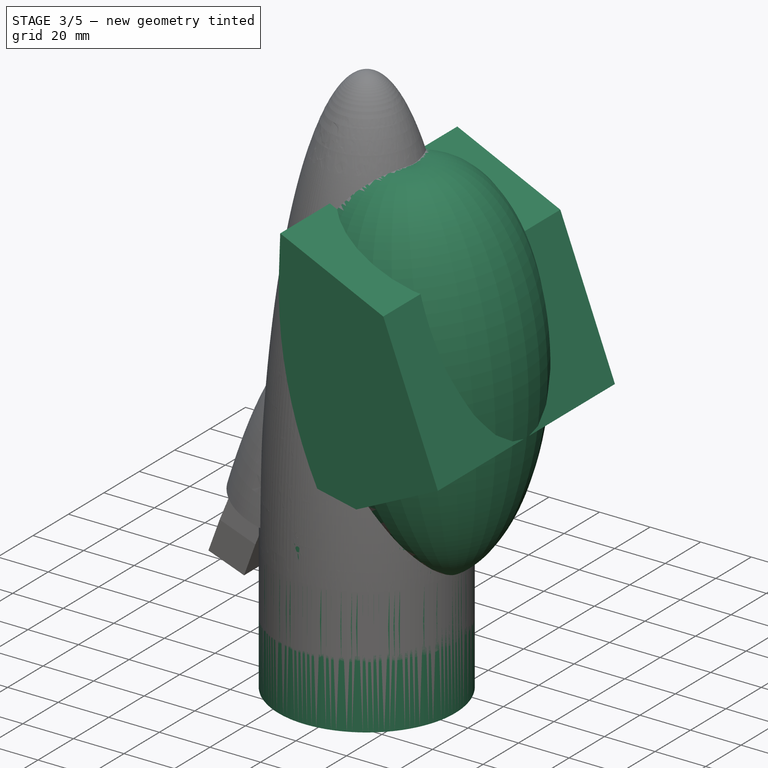
[diagram: stage 3 of 5 — iso view after this stage's code; geometry added in this stage tinted green]
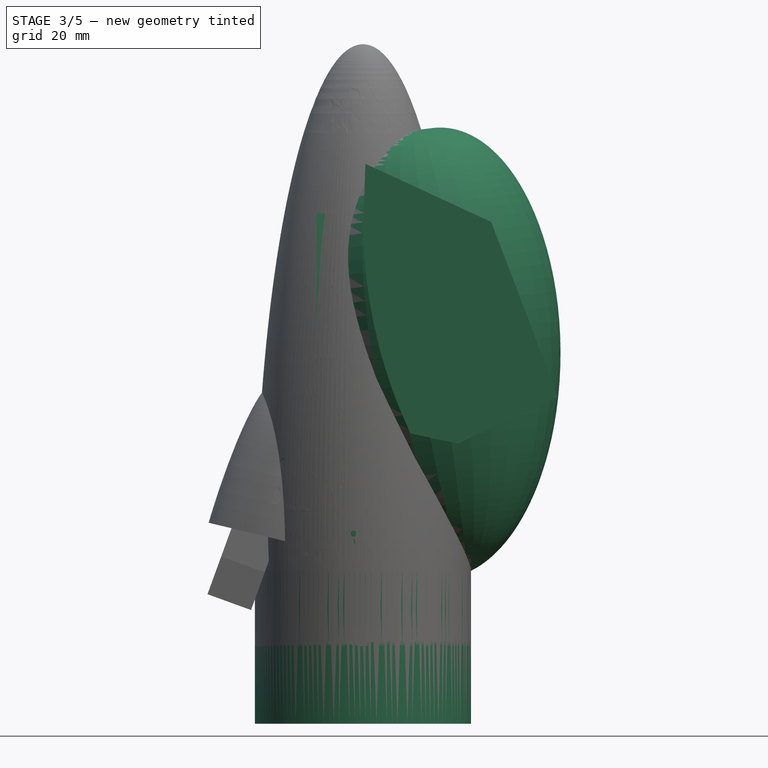
[diagram: stage 3 of 5 — front view after this stage's code; geometry added in this stage tinted green]
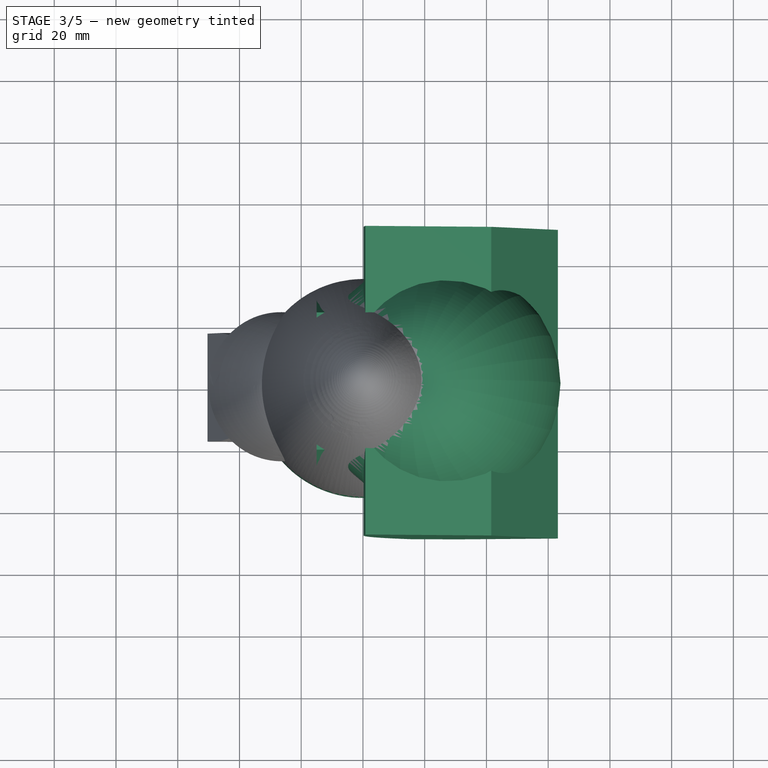
[diagram: stage 3 of 5 — top view after this stage's code; geometry added in this stage tinted green]
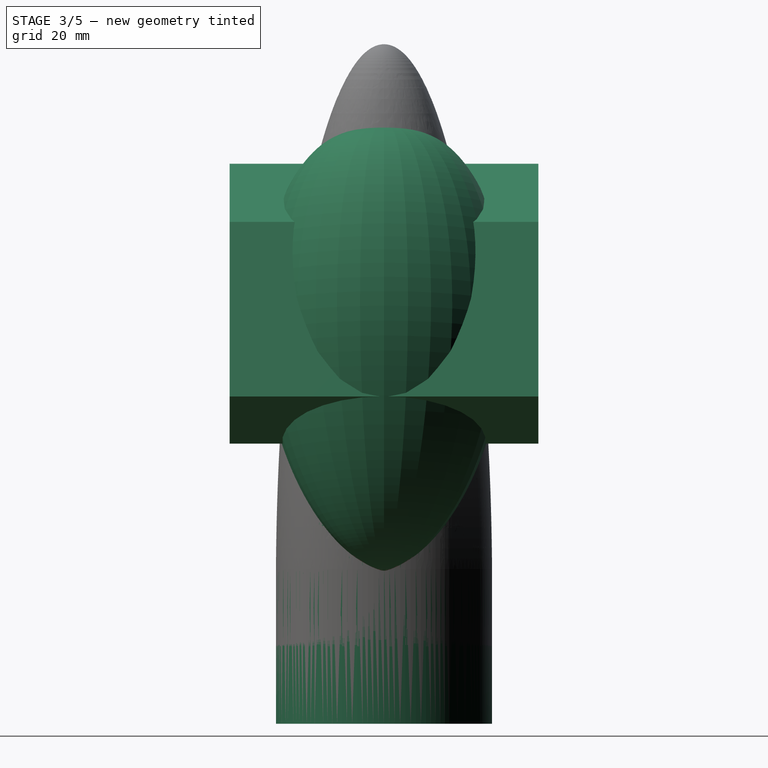
[diagram: stage 3 of 5 — right view after this stage's code; geometry added in this stage tinted green]
FEATURE [Sketcher::SketchObject] Sketch068
  Placement = pos=(0,0,0) rot=(1,0,0;1.5708rad)
  sketch-geometry (7):
    g0: LineSegment [constr] StartX=16.3824 StartY=177.296 StartZ=0 EndX=45 EndY=-46.182 EndZ=0
    g1: ArcOfEllipse CenterX=25 CenterY=110 CenterZ=0 NormalX=0 NormalY=0 NormalZ=1 MajorRadius=73.0117 MinorRadius=39 AngleXU=1.5708 StartAngle=3.37688 EndAngle=6.51848
    g2: LineSegment [constr] StartX=25 StartY=183.012 StartZ=0 EndX=25 EndY=36.9883 EndZ=0
    g3: LineSegment [constr] StartX=-14 StartY=110 StartZ=0 EndX=64 EndY=110 EndZ=0
    g4: GeomPoint [constr] X=25 Y=171.723 Z=0
    g5: GeomPoint [constr] X=25 Y=48.2771 Z=0
    g6: LineSegment StartX=15.908 StartY=181 StartZ=0 EndX=34.092 EndY=39 EndZ=0
  constraints (12):
    c: DistanceX(g-1,g0) = 45
    c: InternalAlignment(g2-g5 -> g1) x4
    c: PointOnObject(g1,g0)
    c: PointOnObject(g1,g0)
    c: PointOnObject(g1,g0)
    c: Vertical(g2)
    c: DistanceY(g1,g1) = 142
    c: DistanceY(g-1,g1) = 181
    c: DistanceX(g1,g3) = 39
    c: Coincident(g6,g1)
    c: Coincident(g6,g1)
    c: DistanceX(g-1,g1) = 25
FEATURE [PartDesign::Revolution] Revolution004  label="Ei-gross"
  Angle = 360
  Axis = (28.6176,0,-223.478)
  Base = (16.3824,0,177.296)
  Placement = pos=(0,0,0) rot=(1,0,0;1.5708rad)
  ReferenceAxis = -> Sketch068 [Axis0]
  Sketch = -> Sketch068
FEATURE [Sketcher::SketchObject] Sketch069
  Placement = pos=(0,0,0) rot=(1,0,0;1.5708rad)
  sketch-geometry (7):
    g0: LineSegment StartX=35 StartY=-10.1123 StartZ=0 EndX=35 EndY=39.8877 EndZ=0
    g1: ArcOfEllipse CenterX=0 CenterY=34.659 CenterZ=0 NormalX=0 NormalY=0 NormalZ=1 MajorRadius=175.341 MinorRadius=35.0156 AngleXU=-1.5708 StartAngle=1.60062 EndAngle=3.14159
    g2: LineSegment [constr] StartX=35.0156 StartY=34.659 StartZ=0 EndX=-35.0156 EndY=34.659 EndZ=0
    g3: GeomPoint [constr] X=0 Y=-137.15 Z=0
    g4: GeomPoint [constr] X=0 Y=206.468 Z=0
    g5: LineSegment StartX=35 StartY=-10.1123 StartZ=0 EndX=0 EndY=-10.1123 EndZ=0
    g6: LineSegment StartX=0 StartY=-10.1123 StartZ=0 EndX=0 EndY=210 EndZ=0
  constraints (14):
    c: Vertical(g0)
    c: DistanceX(g-1,g0) = 35
    c: InternalAlignment(g2,g1)
    c: InternalAlignment(g3,g1)
    c: InternalAlignment(g4,g1)
    c: PointOnObject(g1,g-2)
    c: Coincident(g1,g0)
    c: DistanceY(g0,g0) = 50
    c: Coincident(g0,g5)
    c: Horizontal(g5)
    c: Coincident(g5,g6)
    c: Vertical(g6)
    c: PointOnObject(g1,g-2)
    c: Coincident(g6,g1)
FEATURE [PartDesign::Revolution] Revolution005
  Angle = 360
  Axis = (0,0,1)
  Base = (0,0,0)
  Placement = pos=(0,0,0) rot=(1,0,0;1.5708rad)
  ReferenceAxis = -> Sketch069 [V_Axis]
  Reversed = true
  Sketch = -> Sketch069
FEATURE [Part::MultiCommon] Common001
  Shapes = -> [Revolution005,Revolution004]
FEATURE [Sketcher::SketchObject] Sketch070
  Placement = pos=(0,0,0) rot=(1,0,0;1.5708rad)
  sketch-geometry (7):
    g0: LineSegment [constr] StartX=16.3825 StartY=177.294 StartZ=0 EndX=45 EndY=-46.1806 EndZ=0
    g1: ArcOfEllipse CenterX=25 CenterY=110 CenterZ=0 NormalX=0 NormalY=0 NormalZ=1 MajorRadius=72.0329 MinorRadius=38 AngleXU=1.5708 StartAngle=3.37973 EndAngle=6.52132
    g2: LineSegment [constr] StartX=25 StartY=182.033 StartZ=0 EndX=25 EndY=37.9671 EndZ=0
    g3: LineSegment [constr] StartX=-13 StartY=110 StartZ=0 EndX=63 EndY=110 EndZ=0
    g4: GeomPoint [constr] X=25 Y=171.194 Z=0
    g5: GeomPoint [constr] X=25 Y=48.8058 Z=0
    g6: LineSegment StartX=16.036 StartY=180 StartZ=0 EndX=33.964 EndY=40 EndZ=0
  constraints (12):
    c: DistanceX(g-1,g0) = 45
    c: InternalAlignment(g2-g5 -> g1) x4
    c: PointOnObject(g1,g0)
    c: PointOnObject(g1,g0)
    c: PointOnObject(g1,g0)
    c: Vertical(g2)
    c: DistanceY(g1,g1) = 140
    c: DistanceY(g-1,g1) = 180
    c: DistanceX(g1,g3) = 38
    c: Coincident(g6,g1)
    c: Coincident(g6,g1)
    c: DistanceX(g-1,g1) = 25
FEATURE [PartDesign::Revolution] Revolution006  label="Ei002"
  Angle = 360
  Axis = (28.6175,0,-223.475)
  Base = (16.3825,0,177.294)
  Placement = pos=(0,0,0) rot=(1,0,0;1.5708rad)
  ReferenceAxis = -> Sketch070 [Axis0]
  Sketch = -> Sketch070
FEATURE [Part::Cut] Cut001  label="G-Kammer"
  Base = -> Common001
  Tool = -> Revolution006
FEATURE [Sketcher::SketchObject] Sketch076
  Placement = pos=(0,0,0) rot=(1,0,0;1.5708rad)
  sketch-geometry (7):
    g0: LineSegment [constr] StartX=16.3824 StartY=177.296 StartZ=0 EndX=45 EndY=-46.182 EndZ=0
    g1: ArcOfEllipse CenterX=25 CenterY=110 CenterZ=0 NormalX=0 NormalY=0 NormalZ=1 MajorRadius=73.0117 MinorRadius=39 AngleXU=1.5708 StartAngle=3.37688 EndAngle=6.51848
    g2: LineSegment [constr] StartX=25 StartY=183.012 StartZ=0 EndX=25 EndY=36.9883 EndZ=0
    g3: LineSegment [constr] StartX=-14 StartY=110 StartZ=0 EndX=64 EndY=110 EndZ=0
    g4: GeomPoint [constr] X=25 Y=171.723 Z=0
    g5: GeomPoint [constr] X=25 Y=48.2771 Z=0
    g6: LineSegment StartX=15.908 StartY=181 StartZ=0 EndX=34.092 EndY=39 EndZ=0
  constraints (12):
    c: DistanceX(g-1,g0) = 45
    c: InternalAlignment(g2-g5 -> g1) x4
    c: PointOnObject(g1,g0)
    c: PointOnObject(g1,g0)
    c: PointOnObject(g1,g0)
    c: Vertical(g2)
    c: DistanceY(g1,g1) = 142
    c: DistanceY(g-1,g1) = 181
    c: DistanceX(g1,g3) = 39
    c: Coincident(g6,g1)
    c: Coincident(g6,g1)
    c: DistanceX(g-1,g1) = 25
FEATURE [PartDesign::Revolution] Revolution011  label="Ei-gross002"
  Angle = 360
  Axis = (28.6176,0,-223.478)
  Base = (16.3824,0,177.296)
  Placement = pos=(0,0,0) rot=(1,0,0;1.5708rad)
  ReferenceAxis = -> Sketch076 [Axis0]
  Sketch = -> Sketch076
FEATURE [Sketcher::SketchObject] Sketch077
  Placement = pos=(0,0,0) rot=(1,0,0;1.5708rad)
  sketch-geometry (7):
    g0: LineSegment StartX=35 StartY=-10.1123 StartZ=0 EndX=35 EndY=39.8877 EndZ=0
    g1: ArcOfEllipse CenterX=0 CenterY=34.659 CenterZ=0 NormalX=0 NormalY=0 NormalZ=1 MajorRadius=175.341 MinorRadius=35.0156 AngleXU=-1.5708 StartAngle=1.60062 EndAngle=3.14159
    g2: LineSegment [constr] StartX=35.0156 StartY=34.659 StartZ=0 EndX=-35.0156 EndY=34.659 EndZ=0
    g3: GeomPoint [constr] X=0 Y=-137.15 Z=0
    g4: GeomPoint [constr] X=0 Y=206.468 Z=0
    g5: LineSegment StartX=35 StartY=-10.1123 StartZ=0 EndX=0 EndY=-10.1123 EndZ=0
    g6: LineSegment StartX=0 StartY=-10.1123 StartZ=0 EndX=0 EndY=210 EndZ=0
  constraints (14):
    c: Vertical(g0)
    c: DistanceX(g-1,g0) = 35
    c: InternalAlignment(g2,g1)
    c: InternalAlignment(g3,g1)
    c: InternalAlignment(g4,g1)
    c: PointOnObject(g1,g-2)
    c: Coincident(g1,g0)
    c: DistanceY(g0,g0) = 50
    c: Coincident(g0,g5)
    c: Horizontal(g5)
    c: Coincident(g5,g6)
    c: Vertical(g6)
    c: PointOnObject(g1,g-2)
    c: Coincident(g6,g1)
FEATURE [PartDesign::Revolution] Revolution012
  Angle = 360
  Axis = (0,0,1)
  Base = (0,0,0)
  Placement = pos=(0,0,0) rot=(1,0,0;1.5708rad)
  ReferenceAxis = -> Sketch077 [V_Axis]
  Reversed = true
  Sketch = -> Sketch077
FEATURE [Sketcher::SketchObject] Sketch078
  Placement = pos=(0,0,0) rot=(1,0,0;1.5708rad)
  sketch-geometry (20):
    g0: LineSegment StartX=33.5 StartY=40 StartZ=0 EndX=33.5 EndY=30 EndZ=0
    g1: LineSegment StartX=35 StartY=-10 StartZ=0 EndX=35 EndY=40 EndZ=0
    g2: LineSegment StartX=33.5 StartY=30 StartZ=0 EndX=34 EndY=0 EndZ=0
    g3: LineSegment [constr] StartX=30.3319 StartY=40 StartZ=0 EndX=34.2664 EndY=40 EndZ=0
    g4: ArcOfEllipse CenterX=0 CenterY=34.6846 CenterZ=0 NormalX=0 NormalY=0 NormalZ=1 MajorRadius=175.315 MinorRadius=35.0161 AngleXU=-1.5708 StartAngle=1.60112 EndAngle=3.14159
    g5: LineSegment [constr] StartX=0 StartY=-140.631 StartZ=0 EndX=0 EndY=210 EndZ=0
    g6: LineSegment [constr] StartX=35.0161 StartY=34.6846 StartZ=0 EndX=-35.0161 EndY=34.6846 EndZ=0
    g7: GeomPoint [constr] X=0 Y=-137.098 Z=0
    g8: GeomPoint [constr] X=0 Y=206.467 Z=0
    g9: ArcOfCircle CenterX=0 CenterY=193 CenterZ=0 NormalX=0 NormalY=0 NormalZ=1 Radius=17 StartAngle=1.5708 EndAngle=1.5708
    g10: GeomPoint [constr] X=-1e-12 Y=210 Z=0
    g11: ArcOfCircle CenterX=0 CenterY=193 CenterZ=0 NormalX=0 NormalY=0 NormalZ=1 Radius=15 StartAngle=1.5708 EndAngle=1.5708
    g12: ArcOfEllipse CenterX=0 CenterY=34.6846 CenterZ=0 NormalX=0 NormalY=0 NormalZ=1 MajorRadius=173.315 MinorRadius=33.5158 AngleXU=1.5708 StartAngle=4.74306 EndAngle=6.28319
    g13: LineSegment [constr] StartX=0 StartY=208 StartZ=0 EndX=0 EndY=-138.631 EndZ=0
    g14: LineSegment [constr] StartX=-33.5158 StartY=34.6846 StartZ=0 EndX=33.5158 EndY=34.6846 EndZ=0
    g15: GeomPoint [constr] X=0 Y=204.728 Z=0
    g16: GeomPoint [constr] X=0 Y=-135.359 Z=0
    g17: LineSegment StartX=0 StartY=210 StartZ=0 EndX=0 EndY=208 EndZ=0
    g18: LineSegment StartX=34 StartY=0 StartZ=0 EndX=34 EndY=-10 EndZ=0
    g19: LineSegment StartX=34 StartY=-10 StartZ=0 EndX=35 EndY=-10 EndZ=0
  constraints (40):
    c: Vertical(g0)
    c: Vertical(g1)
    c: DistanceX(g-1,g1) = 35
    c: Coincident(g0,g2)
    c: DistanceY(g2,g0) = 30
    c: Horizontal(g3)
    c: InternalAlignment(g5-g8 -> g4) x4
    c: Vertical(g5)
    c: PointOnObject(g4,g-2)
    c: Coincident(g4,g1)
    c: PointOnObject(g9,g-2)
    c: PointOnObject(g9,g-2)
    c: Coincident(g4,g9)
    c: PointOnObject(g10,g4)
    c: PointOnObject(g10,g9)
    c: Tangent(g4,g9,g10) = -1.5708
    c: DistanceY(g-1,g5) = 210
    c: PointOnObject(g1,g3)
    c: PointOnObject(g0,g3)
    c: DistanceY(g-1,g3) = 40
    c: Radius(g9) = 17
    c: Coincident(g11,g9)
    c: PointOnObject(g11,g-2)
    c: Radius(g11) = 15
    c: InternalAlignment(g13-g16 -> g12) x4
    c: Vertical(g13)
    c: Coincident(g12,g4)
    c: Coincident(g12,g11)
    c: Coincident(g12,g0)
    c: DistanceX(g0,g1) = 1.5
    c: Coincident(g17,g5)
    c: Coincident(g17,g11)
    c: Distance(g11,g4) = 2
    c: DistanceY(g1,g1) = 50
    c: Coincident(g18,g2)
    c: Vertical(g18)
    c: Coincident(g19,g18)
    c: Coincident(g19,g1)
    c: Horizontal(g19)
    c: DistanceX(g19,g19) = 1
FEATURE [PartDesign::Revolution] Revolution013  label="Grundform003"
  Angle = 360
  Axis = (0,0,1)
  Base = (0,0,0)
  Placement = pos=(0,0,0) rot=(1,0,0;1.5708rad)
  ReferenceAxis = -> Sketch078 [V_Axis]
  Reversed = true
  Sketch = -> Sketch078
FEATURE [Sketcher::SketchObject] Sketch079
  Placement = pos=(0,0,0) rot=(1,0,0;1.5708rad)
  sketch-geometry (7):
    g0: LineSegment [constr] StartX=16.3825 StartY=177.294 StartZ=0 EndX=45 EndY=-46.1806 EndZ=0
    g1: ArcOfEllipse CenterX=25 CenterY=110 CenterZ=0 NormalX=0 NormalY=0 NormalZ=1 MajorRadius=72.0329 MinorRadius=38 AngleXU=1.5708 StartAngle=3.37973 EndAngle=6.52132
    g2: LineSegment [constr] StartX=25 StartY=182.033 StartZ=0 EndX=25 EndY=37.9671 EndZ=0
    g3: LineSegment [constr] StartX=-13 StartY=110 StartZ=0 EndX=63 EndY=110 EndZ=0
    g4: GeomPoint [constr] X=25 Y=171.194 Z=0
    g5: GeomPoint [constr] X=25 Y=48.8058 Z=0
    g6: LineSegment StartX=16.036 StartY=180 StartZ=0 EndX=33.964 EndY=40 EndZ=0
  constraints (12):
    c: DistanceX(g-1,g0) = 45
    c: InternalAlignment(g2-g5 -> g1) x4
    c: PointOnObject(g1,g0)
    c: PointOnObject(g1,g0)
    c: PointOnObject(g1,g0)
    c: Vertical(g2)
    c: DistanceY(g1,g1) = 140
    c: DistanceY(g-1,g1) = 180
    c: DistanceX(g1,g3) = 38
    c: Coincident(g6,g1)
    c: Coincident(g6,g1)
    c: DistanceX(g-1,g1) = 25
FEATURE [PartDesign::Revolution] Revolution014  label="Ei004"
  Angle = 360
  Axis = (28.6175,0,-223.475)
  Base = (16.3825,0,177.294)
  Placement = pos=(0,0,0) rot=(1,0,0;1.5708rad)
  ReferenceAxis = -> Sketch079 [Axis0]
  Sketch = -> Sketch079
FEATURE [Part::MultiCommon] Common007  label="G-Türe002"
  Shapes = -> [Revolution013,Revolution014]
FEATURE [Sketcher::SketchObject] Sketch080
  Placement = pos=(0,0,0) rot=(1,0,0;1.5708rad)
  sketch-geometry (6):
    g0: ArcOfCircle CenterX=157.411 CenterY=151.441 CenterZ=0 NormalX=0 NormalY=0 NormalZ=1 Radius=157.222 StartAngle=3.10647 EndAngle=3.58537
    g1: LineSegment StartX=0.28628 StartY=156.962 StartZ=0 EndX=0.78912 EndY=171.273 EndZ=0
    g2: LineSegment StartX=0.78912 StartY=171.273 StartZ=0 EndX=41.5411 EndY=152.443 EndZ=0
    g3: LineSegment StartX=41.5411 StartY=152.443 StartZ=0 EndX=63.129 EndY=95.9066 EndZ=0
    g4: LineSegment StartX=63.129 StartY=95.9066 StartZ=0 EndX=30.8495 EndY=80.621 EndZ=0
    g5: LineSegment StartX=30.8495 StartY=80.621 StartZ=0 EndX=15.4183 EndY=83.9378 EndZ=0
  constraints (10):
    c: DistanceY(g-1,g0) = 83.9378
    c: DistanceX(g-1,g0) = 15.4183
    c: DistanceX(g-1,g0) = 0.28628
    c: DistanceY(g-1,g0) = 156.962
    c: Tangent(g0,g1) = 1.5708
    c: Coincident(g1,g2)
    c: Coincident(g2,g3)
    c: Coincident(g3,g4)
    c: Coincident(g4,g5)
    c: Coincident(g5,g0)
FEATURE [PartDesign::Pad] Pad002
  Length = 100
  Length2 = 100
  Midplane = true
  Placement = pos=(0,0,0) rot=(1,0,0;1.5708rad)
  Sketch = -> Sketch080
  Type = 0
FEATURE [Sketcher::SketchObject] Sketch081
  Placement = pos=(0,0,0) rot=(0.57735,0.57735,0.57735;2.0944rad)
  sketch-geometry (8):
    g0: LineSegment StartX=-22.2438 StartY=155.181 StartZ=0 EndX=-25.121 EndY=134.23 EndZ=0
    g1: LineSegment StartX=-28.3063 StartY=105.056 StartZ=0 EndX=-27.191 EndY=83.4789 EndZ=0
    g2: LineSegment StartX=-25.121 StartY=134.23 StartZ=0 EndX=-28.3063 EndY=105.056 EndZ=0
    g3: LineSegment StartX=-22.2438 StartY=155.181 StartZ=0 EndX=22.2438 EndY=155.181 EndZ=0
    g4: LineSegment StartX=22.2438 StartY=155.181 StartZ=0 EndX=25.121 EndY=134.23 EndZ=0
    g5: LineSegment StartX=25.121 StartY=134.23 StartZ=0 EndX=28.3063 EndY=105.056 EndZ=0
    g6: LineSegment StartX=28.3063 StartY=105.056 StartZ=0 EndX=27.191 EndY=83.4789 EndZ=0
    g7: LineSegment StartX=27.191 StartY=83.4789 StartZ=0 EndX=-27.191 EndY=83.4789 EndZ=0
  constraints (14):
    c: Coincident(g2,g0)
    c: Coincident(g2,g1)
    c: Coincident(g0,g3)
    c: Horizontal(g3)
    c: Coincident(g3,g4)
    c: Coincident(g4,g5)
    c: Coincident(g5,g6)
    c: Coincident(g6,g7)
    c: Coincident(g7,g1)
    c: Horizontal(g7)
    c: Symmetric(g1,g6,g-2)
    c: Symmetric(g5,g1,g-2)
    c: Symmetric(g4,g0,g-2)
    c: Symmetric(g3,g0,g-2)
FEATURE [PartDesign::Pad] Pad003
  Length = 30
  Length2 = 100
  Midplane = true
  Placement = pos=(0,0,0) rot=(0.57735,0.57735,0.57735;2.0944rad)
  Sketch = -> Sketch081
  Type = 0
FEATURE [Sketcher::SketchObject] Sketch082
  Placement = pos=(0,0,0) rot=(0.57735,0.57735,0.57735;2.0944rad)
  sketch-geometry (8):
    g0: LineSegment StartX=-27.2317 StartY=129.404 StartZ=0 EndX=-25.2317 EndY=129.404 EndZ=0
    g1: LineSegment StartX=-25.2317 StartY=129.404 StartZ=0 EndX=-25.2317 EndY=109.404 EndZ=0
    g2: LineSegment StartX=-25.2317 StartY=109.404 StartZ=0 EndX=-27.2317 EndY=109.404 EndZ=0
    g3: LineSegment StartX=-27.2317 StartY=109.404 StartZ=0 EndX=-27.2317 EndY=129.404 EndZ=0
    g4: LineSegment StartX=25.2317 StartY=129.404 StartZ=0 EndX=27.2317 EndY=129.404 EndZ=0
    g5: LineSegment StartX=27.2317 StartY=129.404 StartZ=0 EndX=27.2317 EndY=109.404 EndZ=0
    g6: LineSegment StartX=27.2317 StartY=109.404 StartZ=0 EndX=25.2317 EndY=109.404 EndZ=0
    g7: LineSegment StartX=25.2317 StartY=109.404 StartZ=0 EndX=25.2317 EndY=129.404 EndZ=0
  constraints (21):
    c: Coincident(g0,g1)
    c: Coincident(g1,g2)
    c: Coincident(g2,g3)
    c: Coincident(g3,g0)
    c: Horizontal(g0)
    c: Horizontal(g2)
    c: Vertical(g1)
    c: Vertical(g3)
    c: Coincident(g4,g5)
    c: Coincident(g5,g6)
    c: Coincident(g6,g7)
    c: Coincident(g7,g4)
    c: Horizontal(g4)
    c: Horizontal(g6)
    c: Vertical(g5)
    c: Vertical(g7)
    c: Equal(g7,g1)
    c: Equal(g6,g2)
    c: DistanceX(g6,g6) = 2
    c: DistanceY(g5,g5) = 20
    c: Symmetric(g0,g4,g-2)
FEATURE [PartDesign::Pad] Pad004
  Length = 30
  Length2 = 100
  Midplane = true
  Placement = pos=(0,0,0) rot=(0.57735,0.57735,0.57735;2.0944rad)
  Sketch = -> Sketch082
  Type = 0
FEATURE [Part::Cut] Cut006  label="H-Kammer"
  Base = -> Cut001
  Tool = -> Pad004
FEATURE [Sketcher::SketchObject] Sketch096
  Placement = pos=(0,0,177) rot=(0,0,1;0rad)
  sketch-geometry (4):
    g0: LineSegment StartX=10 StartY=2.55 StartZ=0 EndX=15 EndY=3.55 EndZ=0
    g1: LineSegment StartX=15 StartY=3.55 StartZ=0 EndX=15 EndY=-3.55 EndZ=0
    g2: LineSegment StartX=15 StartY=-3.55 StartZ=0 EndX=10 EndY=-2.55 EndZ=0
    g3: LineSegment StartX=10 StartY=-2.55 StartZ=0 EndX=10 EndY=2.55 EndZ=0
  constraints (12):
    c: Coincident(g0,g1)
    c: Vertical(g1)
    c: Coincident(g1,g2)
    c: Coincident(g2,g3)
    c: Coincident(g3,g0)
    c: Vertical(g3)
    c: Symmetric(g0,g2,g-1)
    c: Symmetric(g0,g1,g-1)
    c: DistanceY(g1,g1) = 7.1
    c: DistanceY(g3,g3) = 5.1
    c: DistanceX(g0,g0) = 5
    c: DistanceX(g-1,g0) = 10
FEATURE [PartDesign::Pad] Pad010
  Length = 10
  Length2 = 100
  Placement = pos=(0,0,177) rot=(0,0,1;0rad)
  Sketch = -> Sketch096
  Type = 0
FEATURE [Part::Cut] Cut007  label="I-Kammer"
  Base = -> Cut006
  Tool = -> Pad010
FEATURE [Part::Cut] Cut012
  Base = -> Cut011
  Tool = -> Pad018
FEATURE [Part::MultiFuse] Fusion  label="J-Kammer"
  Shapes = -> [Cut012,Cut007]
FEATURE [Part::Cut] Cut013
  Base = -> Fusion
  Tool = -> Cylinder
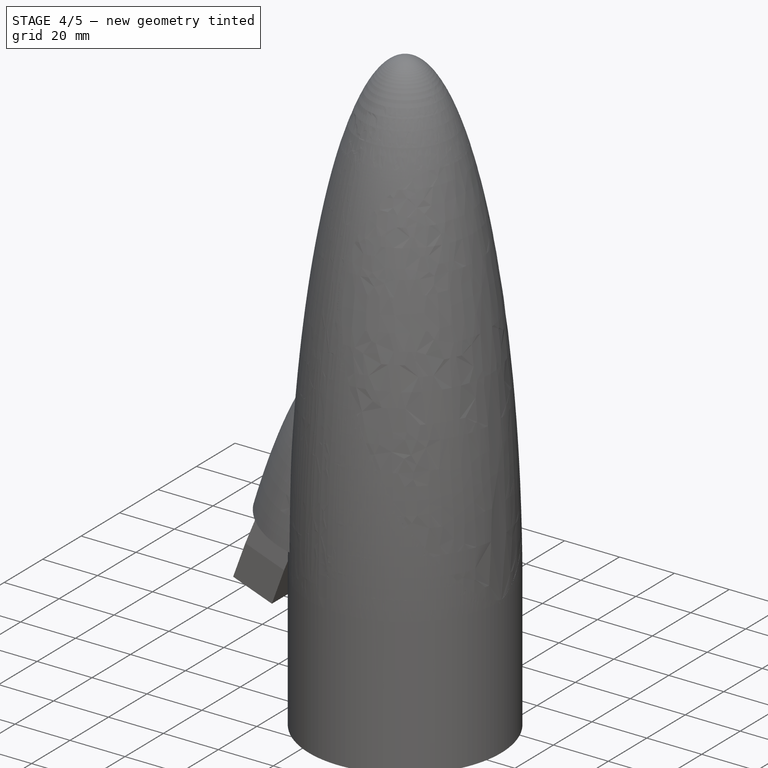
[diagram: stage 4 of 5 — iso view after this stage's code; geometry added in this stage tinted green]
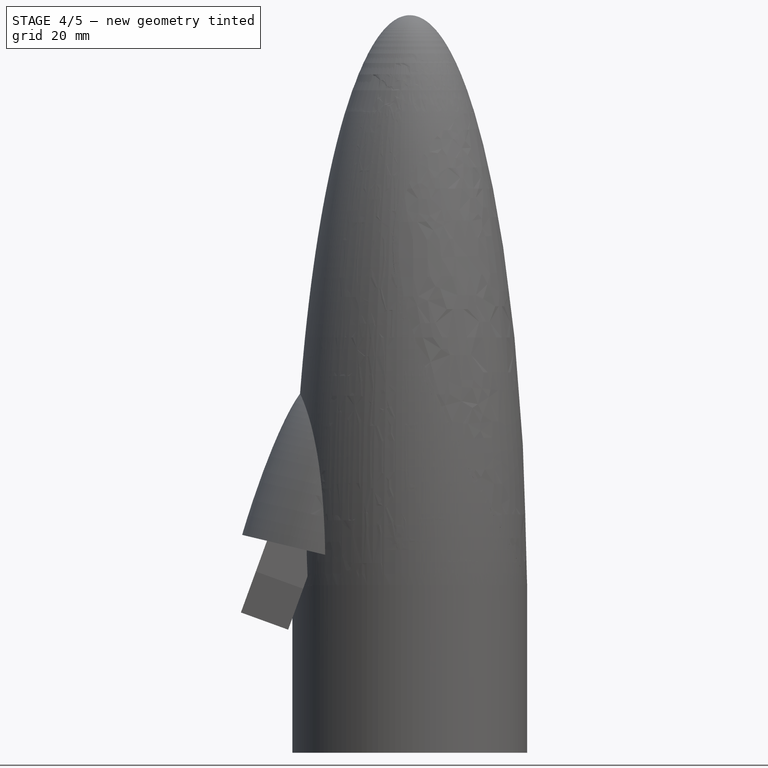
[diagram: stage 4 of 5 — front view after this stage's code; geometry added in this stage tinted green]
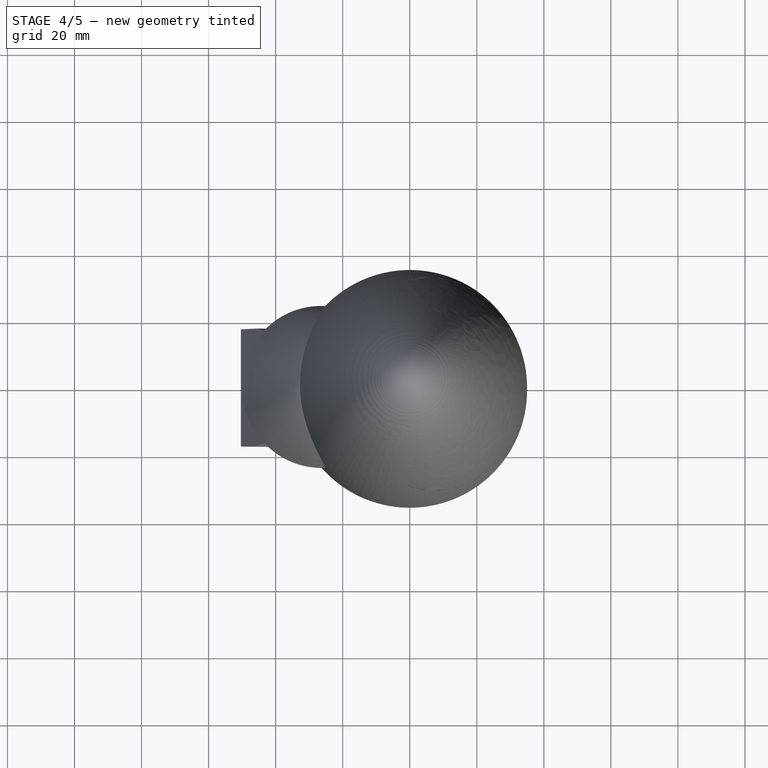
[diagram: stage 4 of 5 — top view after this stage's code; geometry added in this stage tinted green]
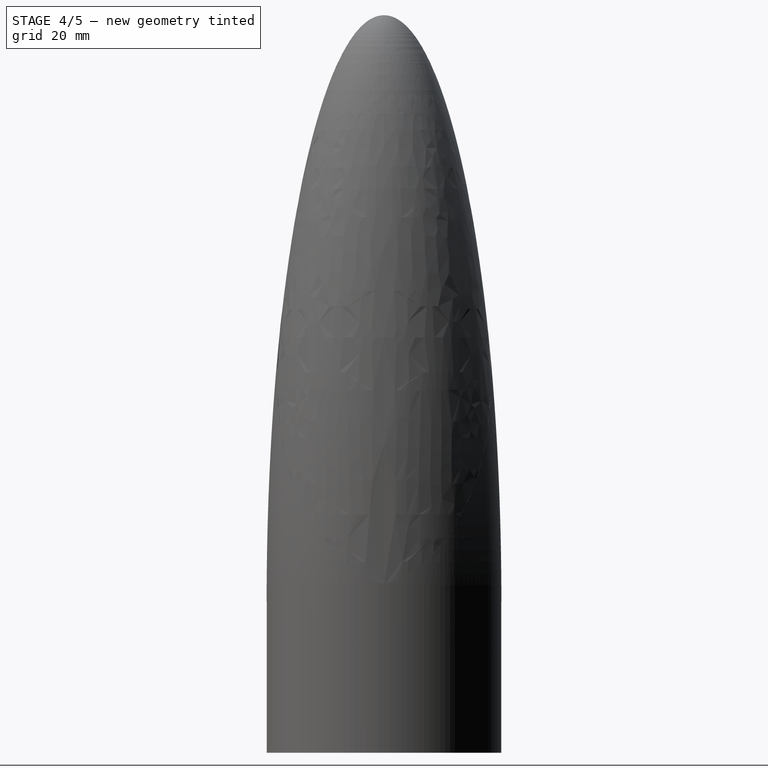
[diagram: stage 4 of 5 — right view after this stage's code; geometry added in this stage tinted green]
FEATURE [Sketcher::SketchObject] Sketch104
  Placement = pos=(0,0,0) rot=(1,0,0;1.5708rad)
  sketch-geometry (20):
    g0: LineSegment StartX=33.5 StartY=40 StartZ=0 EndX=33.5 EndY=30 EndZ=0
    g1: LineSegment StartX=35 StartY=-10 StartZ=0 EndX=35 EndY=40 EndZ=0
    g2: LineSegment StartX=33.5 StartY=30 StartZ=0 EndX=34 EndY=0 EndZ=0
    g3: LineSegment [constr] StartX=30.3319 StartY=40 StartZ=0 EndX=34.2664 EndY=40 EndZ=0
    g4: ArcOfEllipse CenterX=0 CenterY=34.6846 CenterZ=0 NormalX=0 NormalY=0 NormalZ=1 MajorRadius=175.315 MinorRadius=35.0161 AngleXU=-1.5708 StartAngle=1.60112 EndAngle=3.14159
    g5: LineSegment [constr] StartX=0 StartY=-140.631 StartZ=0 EndX=0 EndY=210 EndZ=0
    g6: LineSegment [constr] StartX=35.0161 StartY=34.6846 StartZ=0 EndX=-35.0161 EndY=34.6846 EndZ=0
    g7: GeomPoint [constr] X=0 Y=-137.098 Z=0
    g8: GeomPoint [constr] X=0 Y=206.467 Z=0
    g9: ArcOfCircle CenterX=0 CenterY=193 CenterZ=0 NormalX=0 NormalY=0 NormalZ=1 Radius=17 StartAngle=1.5708 EndAngle=1.5708
    g10: GeomPoint [constr] X=-1e-12 Y=210 Z=0
    g11: ArcOfCircle CenterX=0 CenterY=193 CenterZ=0 NormalX=0 NormalY=0 NormalZ=1 Radius=15 StartAngle=1.5708 EndAngle=1.5708
    g12: ArcOfEllipse CenterX=0 CenterY=34.6846 CenterZ=0 NormalX=0 NormalY=0 NormalZ=1 MajorRadius=173.315 MinorRadius=33.5158 AngleXU=1.5708 StartAngle=4.74306 EndAngle=6.28319
    g13: LineSegment [constr] StartX=0 StartY=208 StartZ=0 EndX=0 EndY=-138.631 EndZ=0
    g14: LineSegment [constr] StartX=-33.5158 StartY=34.6846 StartZ=0 EndX=33.5158 EndY=34.6846 EndZ=0
    g15: GeomPoint [constr] X=0 Y=204.728 Z=0
    g16: GeomPoint [constr] X=0 Y=-135.359 Z=0
    g17: LineSegment StartX=0 StartY=210 StartZ=0 EndX=0 EndY=208 EndZ=0
    g18: LineSegment StartX=34 StartY=0 StartZ=0 EndX=34 EndY=-10 EndZ=0
    g19: LineSegment StartX=34 StartY=-10 StartZ=0 EndX=35 EndY=-10 EndZ=0
  constraints (40):
    c: Vertical(g0)
    c: Vertical(g1)
    c: DistanceX(g-1,g1) = 35
    c: Coincident(g0,g2)
    c: DistanceY(g2,g0) = 30
    c: Horizontal(g3)
    c: InternalAlignment(g5-g8 -> g4) x4
    c: Vertical(g5)
    c: PointOnObject(g4,g-2)
    c: Coincident(g4,g1)
    c: PointOnObject(g9,g-2)
    c: PointOnObject(g9,g-2)
    c: Coincident(g4,g9)
    c: PointOnObject(g10,g4)
    c: PointOnObject(g10,g9)
    c: Tangent(g4,g9,g10) = -1.5708
    c: DistanceY(g-1,g5) = 210
    c: PointOnObject(g1,g3)
    c: PointOnObject(g0,g3)
    c: DistanceY(g-1,g3) = 40
    c: Radius(g9) = 17
    c: Coincident(g11,g9)
    c: PointOnObject(g11,g-2)
    c: Radius(g11) = 15
    c: InternalAlignment(g13-g16 -> g12) x4
    c: Vertical(g13)
    c: Coincident(g12,g4)
    c: Coincident(g12,g11)
    c: Coincident(g12,g0)
    c: DistanceX(g0,g1) = 1.5
    c: Coincident(g17,g5)
    c: Coincident(g17,g11)
    c: Distance(g11,g4) = 2
    c: DistanceY(g1,g1) = 50
    c: Coincident(g18,g2)
    c: Vertical(g18)
    c: Coincident(g19,g18)
    c: Coincident(g19,g1)
    c: Horizontal(g19)
    c: DistanceX(g19,g19) = 1
FEATURE [PartDesign::Revolution] Revolution017  label="Grundform004"
  Angle = 360
  Axis = (0,0,1)
  Base = (0,0,0)
  Placement = pos=(0,0,0) rot=(1,0,0;1.5708rad)
  ReferenceAxis = -> Sketch104 [V_Axis]
  Reversed = true
  Sketch = -> Sketch104
FEATURE [Sketcher::SketchObject] Sketch105
  Placement = pos=(0,0,0) rot=(1,0,0;1.5708rad)
  sketch-geometry (4):
    g0: LineSegment StartX=16.4702 StartY=177.367 StartZ=0 EndX=21.5387 EndY=169.671 EndZ=0
    g1: LineSegment StartX=21.5387 StartY=169.671 StartZ=0 EndX=21.7943 EndY=167.046 EndZ=0
    g2: LineSegment StartX=21.7943 StartY=167.046 StartZ=0 EndX=14.755 EndY=177.734 EndZ=0
    g3: LineSegment StartX=14.755 StartY=177.734 StartZ=0 EndX=16.4702 EndY=177.367 EndZ=0
  constraints (5):
    c: Coincident(g0,g1)
    c: Coincident(g1,g2)
    c: Coincident(g2,g3)
    c: Coincident(g3,g0)
    c: Parallel(g0,g2)
FEATURE [PartDesign::Pad] Pad016
  Length = 4
  Length2 = 100
  Midplane = true
  Placement = pos=(0,0,0) rot=(1,0,0;1.5708rad)
  Sketch = -> Sketch105
  Type = 0
FEATURE [Sketcher::SketchObject] Sketch
  Placement = pos=(0,0,0) rot=(1,0,0;1.5708rad)
  sketch-geometry (3):
    g0: ArcOfCircle CenterX=15.6294 CenterY=78.972 CenterZ=0 NormalX=0 NormalY=0 NormalZ=1 Radius=39.4493 StartAngle=4.72105 EndAngle=5.41682
    g1: LineSegment StartX=15.9708 StartY=39.5242 StartZ=0 EndX=36.3307 EndY=39.5342 EndZ=0
    g2: LineSegment StartX=36.3307 StartY=39.5342 StartZ=0 EndX=41.1767 EndY=48.9124 EndZ=0
  constraints (3):
    c: Coincident(g0,g1)
    c: Coincident(g1,g2)
    c: Coincident(g2,g0)
FEATURE [PartDesign::Pad] Pad
  Length = 40
  Length2 = 100
  Midplane = true
  Placement = pos=(0,0,0) rot=(1,0,0;1.5708rad)
  Sketch = -> Sketch
  Type = 0
FEATURE [Sketcher::SketchObject] Sketch071
  Placement = pos=(0,0,0) rot=(1,0,0;1.5708rad)
  sketch-geometry (7):
    g0: LineSegment [constr] StartX=16.3824 StartY=177.296 StartZ=0 EndX=45 EndY=-46.182 EndZ=0
    g1: ArcOfEllipse CenterX=25 CenterY=110 CenterZ=0 NormalX=0 NormalY=0 NormalZ=1 MajorRadius=73.0117 MinorRadius=39 AngleXU=1.5708 StartAngle=3.37688 EndAngle=6.51848
    g2: LineSegment [constr] StartX=25 StartY=183.012 StartZ=0 EndX=25 EndY=36.9883 EndZ=0
    g3: LineSegment [constr] StartX=-14 StartY=110 StartZ=0 EndX=64 EndY=110 EndZ=0
    g4: GeomPoint [constr] X=25 Y=171.723 Z=0
    g5: GeomPoint [constr] X=25 Y=48.2771 Z=0
    g6: LineSegment StartX=15.908 StartY=181 StartZ=0 EndX=34.092 EndY=39 EndZ=0
  constraints (12):
    c: DistanceX(g-1,g0) = 45
    c: InternalAlignment(g2-g5 -> g1) x4
    c: PointOnObject(g1,g0)
    c: PointOnObject(g1,g0)
    c: PointOnObject(g1,g0)
    c: Vertical(g2)
    c: DistanceY(g1,g1) = 142
    c: DistanceY(g-1,g1) = 181
    c: DistanceX(g1,g3) = 39
    c: Coincident(g6,g1)
    c: Coincident(g6,g1)
    c: DistanceX(g-1,g1) = 25
FEATURE [PartDesign::Revolution] Revolution007  label="Ei-gross001"
  Angle = 360
  Axis = (28.6176,0,-223.478)
  Base = (16.3824,0,177.296)
  Placement = pos=(0,0,0) rot=(1,0,0;1.5708rad)
  ReferenceAxis = -> Sketch071 [Axis0]
  Sketch = -> Sketch071
FEATURE [Sketcher::SketchObject] Sketch072
  Placement = pos=(0,0,0) rot=(1,0,0;1.5708rad)
  sketch-geometry (7):
    g0: LineSegment StartX=35 StartY=-10.1123 StartZ=0 EndX=35 EndY=39.8877 EndZ=0
    g1: ArcOfEllipse CenterX=0 CenterY=34.659 CenterZ=0 NormalX=0 NormalY=0 NormalZ=1 MajorRadius=175.341 MinorRadius=35.0156 AngleXU=-1.5708 StartAngle=1.60062 EndAngle=3.14159
    g2: LineSegment [constr] StartX=35.0156 StartY=34.659 StartZ=0 EndX=-35.0156 EndY=34.659 EndZ=0
    g3: GeomPoint [constr] X=0 Y=-137.15 Z=0
    g4: GeomPoint [constr] X=0 Y=206.468 Z=0
    g5: LineSegment StartX=35 StartY=-10.1123 StartZ=0 EndX=0 EndY=-10.1123 EndZ=0
    g6: LineSegment StartX=0 StartY=-10.1123 StartZ=0 EndX=0 EndY=210 EndZ=0
  constraints (14):
    c: Vertical(g0)
    c: DistanceX(g-1,g0) = 35
    c: InternalAlignment(g2,g1)
    c: InternalAlignment(g3,g1)
    c: InternalAlignment(g4,g1)
    c: PointOnObject(g1,g-2)
    c: Coincident(g1,g0)
    c: DistanceY(g0,g0) = 50
    c: Coincident(g0,g5)
    c: Horizontal(g5)
    c: Coincident(g5,g6)
    c: Vertical(g6)
    c: PointOnObject(g1,g-2)
    c: Coincident(g6,g1)
FEATURE [PartDesign::Revolution] Revolution008
  Angle = 360
  Axis = (0,0,1)
  Base = (0,0,0)
  Placement = pos=(0,0,0) rot=(1,0,0;1.5708rad)
  ReferenceAxis = -> Sketch072 [V_Axis]
  Reversed = true
  Sketch = -> Sketch072
FEATURE [Part::MultiCommon] Common002
  Shapes = -> [Revolution008,Revolution007]
FEATURE [Part::MultiCommon] Common003
  Shapes = -> [Pad,Common002]
FEATURE [Sketcher::SketchObject] Sketch073
  Placement = pos=(0,0,0) rot=(1,0,0;1.5708rad)
  sketch-geometry (20):
    g0: LineSegment StartX=33.5 StartY=40 StartZ=0 EndX=33.5 EndY=30 EndZ=0
    g1: LineSegment StartX=35 StartY=-10 StartZ=0 EndX=35 EndY=40 EndZ=0
    g2: LineSegment StartX=33.5 StartY=30 StartZ=0 EndX=34 EndY=0 EndZ=0
    g3: LineSegment [constr] StartX=30.3319 StartY=40 StartZ=0 EndX=34.2664 EndY=40 EndZ=0
    g4: ArcOfEllipse CenterX=0 CenterY=34.6846 CenterZ=0 NormalX=0 NormalY=0 NormalZ=1 MajorRadius=175.315 MinorRadius=35.0161 AngleXU=-1.5708 StartAngle=1.60112 EndAngle=3.14159
    g5: LineSegment [constr] StartX=0 StartY=-140.631 StartZ=0 EndX=0 EndY=210 EndZ=0
    g6: LineSegment [constr] StartX=35.0161 StartY=34.6846 StartZ=0 EndX=-35.0161 EndY=34.6846 EndZ=0
    g7: GeomPoint [constr] X=0 Y=-137.098 Z=0
    g8: GeomPoint [constr] X=0 Y=206.467 Z=0
    g9: ArcOfCircle CenterX=0 CenterY=193 CenterZ=0 NormalX=0 NormalY=0 NormalZ=1 Radius=17 StartAngle=1.5708 EndAngle=1.5708
    g10: GeomPoint [constr] X=-1e-12 Y=210 Z=0
    g11: ArcOfCircle CenterX=0 CenterY=193 CenterZ=0 NormalX=0 NormalY=0 NormalZ=1 Radius=15 StartAngle=1.5708 EndAngle=1.5708
    g12: ArcOfEllipse CenterX=0 CenterY=34.6846 CenterZ=0 NormalX=0 NormalY=0 NormalZ=1 MajorRadius=173.315 MinorRadius=33.5158 AngleXU=1.5708 StartAngle=4.74306 EndAngle=6.28319
    g13: LineSegment [constr] StartX=0 StartY=208 StartZ=0 EndX=0 EndY=-138.631 EndZ=0
    g14: LineSegment [constr] StartX=-33.5158 StartY=34.6846 StartZ=0 EndX=33.5158 EndY=34.6846 EndZ=0
    g15: GeomPoint [constr] X=0 Y=204.728 Z=0
    g16: GeomPoint [constr] X=0 Y=-135.359 Z=0
    g17: LineSegment StartX=0 StartY=210 StartZ=0 EndX=0 EndY=208 EndZ=0
    g18: LineSegment StartX=34 StartY=0 StartZ=0 EndX=34 EndY=-10 EndZ=0
    g19: LineSegment StartX=34 StartY=-10 StartZ=0 EndX=35 EndY=-10 EndZ=0
  constraints (40):
    c: Vertical(g0)
    c: Vertical(g1)
    c: DistanceX(g-1,g1) = 35
    c: Coincident(g0,g2)
    c: DistanceY(g2,g0) = 30
    c: Horizontal(g3)
    c: InternalAlignment(g5-g8 -> g4) x4
    c: Vertical(g5)
    c: PointOnObject(g4,g-2)
    c: Coincident(g4,g1)
    c: PointOnObject(g9,g-2)
    c: PointOnObject(g9,g-2)
    c: Coincident(g4,g9)
    c: PointOnObject(g10,g4)
    c: PointOnObject(g10,g9)
    c: Tangent(g4,g9,g10) = -1.5708
    c: DistanceY(g-1,g5) = 210
    c: PointOnObject(g1,g3)
    c: PointOnObject(g0,g3)
    c: DistanceY(g-1,g3) = 40
    c: Radius(g9) = 17
    c: Coincident(g11,g9)
    c: PointOnObject(g11,g-2)
    c: Radius(g11) = 15
    c: InternalAlignment(g13-g16 -> g12) x4
    c: Vertical(g13)
    c: Coincident(g12,g4)
    c: Coincident(g12,g11)
    c: Coincident(g12,g0)
    c: DistanceX(g0,g1) = 1.5
    c: Coincident(g17,g5)
    c: Coincident(g17,g11)
    c: Distance(g11,g4) = 2
    c: DistanceY(g1,g1) = 50
    c: Coincident(g18,g2)
    c: Vertical(g18)
    c: Coincident(g19,g18)
    c: Coincident(g19,g1)
    c: Horizontal(g19)
    c: DistanceX(g19,g19) = 1
FEATURE [PartDesign::Revolution] Revolution009  label="Grundform002"
  Angle = 360
  Axis = (0,0,1)
  Base = (0,0,0)
  Placement = pos=(0,0,0) rot=(1,0,0;1.5708rad)
  ReferenceAxis = -> Sketch073 [V_Axis]
  Reversed = true
  Sketch = -> Sketch073
FEATURE [Sketcher::SketchObject] Sketch074
  Placement = pos=(0,0,0) rot=(1,0,0;1.5708rad)
  sketch-geometry (7):
    g0: LineSegment [constr] StartX=16.3825 StartY=177.294 StartZ=0 EndX=45 EndY=-46.1806 EndZ=0
    g1: ArcOfEllipse CenterX=25 CenterY=110 CenterZ=0 NormalX=0 NormalY=0 NormalZ=1 MajorRadius=72.0329 MinorRadius=38 AngleXU=1.5708 StartAngle=3.37973 EndAngle=6.52132
    g2: LineSegment [constr] StartX=25 StartY=182.033 StartZ=0 EndX=25 EndY=37.9671 EndZ=0
    g3: LineSegment [constr] StartX=-13 StartY=110 StartZ=0 EndX=63 EndY=110 EndZ=0
    g4: GeomPoint [constr] X=25 Y=171.194 Z=0
    g5: GeomPoint [constr] X=25 Y=48.8058 Z=0
    g6: LineSegment StartX=16.036 StartY=180 StartZ=0 EndX=33.964 EndY=40 EndZ=0
  constraints (12):
    c: DistanceX(g-1,g0) = 45
    c: InternalAlignment(g2-g5 -> g1) x4
    c: PointOnObject(g1,g0)
    c: PointOnObject(g1,g0)
    c: PointOnObject(g1,g0)
    c: Vertical(g2)
    c: DistanceY(g1,g1) = 140
    c: DistanceY(g-1,g1) = 180
    c: DistanceX(g1,g3) = 38
    c: Coincident(g6,g1)
    c: Coincident(g6,g1)
    c: DistanceX(g-1,g1) = 25
FEATURE [PartDesign::Revolution] Revolution010  label="Ei003"
  Angle = 360
  Axis = (28.6175,0,-223.475)
  Base = (16.3825,0,177.294)
  Placement = pos=(0,0,0) rot=(1,0,0;1.5708rad)
  ReferenceAxis = -> Sketch074 [Axis0]
  Sketch = -> Sketch074
FEATURE [Part::MultiCommon] Common004  label="G-Türe001"
  Shapes = -> [Revolution009,Revolution010]
FEATURE [Part::Cut] Cut002  label="G-Türhalter-unten"
  Base = -> Common003
  Tool = -> Common004
FEATURE [Sketcher::SketchObject] Sketch075
  Placement = pos=(0,0,0) rot=(0.57735,0.57735,0.57735;2.0944rad)
  sketch-geometry (16):
    g0: LineSegment StartX=-27.2517 StartY=154.801 StartZ=0 EndX=-22.2517 EndY=154.801 EndZ=0
    g1: LineSegment StartX=-22.2517 StartY=154.801 StartZ=0 EndX=-22.2517 EndY=134.801 EndZ=0
    g2: LineSegment StartX=-22.2517 StartY=134.801 StartZ=0 EndX=-27.2517 EndY=134.801 EndZ=0
    g3: LineSegment StartX=-27.2517 StartY=134.801 StartZ=0 EndX=-27.2517 EndY=154.801 EndZ=0
    g4: LineSegment StartX=-32.0718 StartY=104.347 StartZ=0 EndX=-27.0718 EndY=104.347 EndZ=0
    g5: LineSegment StartX=-27.0718 StartY=104.347 StartZ=0 EndX=-27.0718 EndY=84.3473 EndZ=0
    g6: LineSegment StartX=-27.0718 StartY=84.3473 StartZ=0 EndX=-32.0718 EndY=84.3473 EndZ=0
    g7: LineSegment StartX=-32.0718 StartY=84.3473 StartZ=0 EndX=-32.0718 EndY=104.347 EndZ=0
    g8: LineSegment StartX=22.2517 StartY=154.801 StartZ=0 EndX=27.2517 EndY=154.801 EndZ=0
    g9: LineSegment StartX=27.2517 StartY=154.801 StartZ=0 EndX=27.2517 EndY=134.801 EndZ=0
    g10: LineSegment StartX=27.2517 StartY=134.801 StartZ=0 EndX=22.2517 EndY=134.801 EndZ=0
    g11: LineSegment StartX=22.2517 StartY=134.801 StartZ=0 EndX=22.2517 EndY=154.801 EndZ=0
    g12: LineSegment StartX=27.0718 StartY=104.347 StartZ=0 EndX=32.0718 EndY=104.347 EndZ=0
    g13: LineSegment StartX=32.0718 StartY=104.347 StartZ=0 EndX=32.0718 EndY=84.3473 EndZ=0
    g14: LineSegment StartX=32.0718 StartY=84.3473 StartZ=0 EndX=27.0718 EndY=84.3473 EndZ=0
    g15: LineSegment StartX=27.0718 StartY=84.3473 StartZ=0 EndX=27.0718 EndY=104.347 EndZ=0
  constraints (42):
    c: Coincident(g0,g1)
    c: Coincident(g1,g2)
    c: Coincident(g2,g3)
    c: Coincident(g3,g0)
    c: Horizontal(g0)
    c: Horizontal(g2)
    c: Vertical(g1)
    c: Vertical(g3)
    c: Coincident(g4,g5)
    c: Coincident(g5,g6)
    c: Coincident(g6,g7)
    c: Coincident(g7,g4)
    c: Horizontal(g4)
    c: Horizontal(g6)
    c: Vertical(g5)
    c: Vertical(g7)
    c: Coincident(g8,g9)
    c: Coincident(g9,g10)
    c: Coincident(g10,g11)
    c: Coincident(g11,g8)
    c: Horizontal(g8)
    c: Horizontal(g10)
    c: Vertical(g9)
    c: Vertical(g11)
    c: Coincident(g12,g13)
    c: Coincident(g13,g14)
    c: Coincident(g14,g15)
    c: Coincident(g15,g12)
    c: Horizontal(g12)
    c: Horizontal(g14)
    c: Vertical(g13)
    c: Vertical(g15)
    c: Equal(g13,g9)
    c: Equal(g9,g3)
    c: Equal(g3,g7)
    c: Equal(g12,g4)
    c: Equal(g4,g2)
    c: Equal(g2,g10)
    c: Symmetric(g4,g12,g-2)
    c: Symmetric(g1,g10,g-2)
    c: DistanceY(g3,g3) = 20
    c: DistanceX(g0,g0) = 5
FEATURE [PartDesign::Pad] Pad001
  Length = 30
  Length2 = 100
  Midplane = true
  Placement = pos=(0,0,0) rot=(0.57735,0.57735,0.57735;2.0944rad)
  Sketch = -> Sketch075
  Type = 0
FEATURE [Part::MultiCommon] Common005
  Shapes = -> [Revolution012,Revolution011]
FEATURE [Part::MultiCommon] Common006
  Shapes = -> [Pad001,Common005]
FEATURE [Part::Cut] Cut003
  Base = -> Common006
  Tool = -> Common007
FEATURE [Part::Cut] Cut004
  Base = -> Cut003
  Tool = -> Pad002
FEATURE [Part::Cut] Cut005
  Base = -> Cut004
  Tool = -> Pad003
FEATURE [Part::Chamfer] Chamfer
  Base = -> Cut005
  Edges = 8 edges r=1: [Edge1,Edge8,Edge25,Edge33,Edge52,Edge66,Edge76,Edge88]
FEATURE [Part::Chamfer] Chamfer001  label="G-Türhalter-seitlich"
  Base = -> Chamfer
  Edges = 4 edges r=1: [Edge9,Edge39,Edge69,Edge99]
FEATURE [Part::MultiFuse] Fusion004  label="K-Kammer"
  Shapes = -> [Cut013,Chamfer001,Cut002]
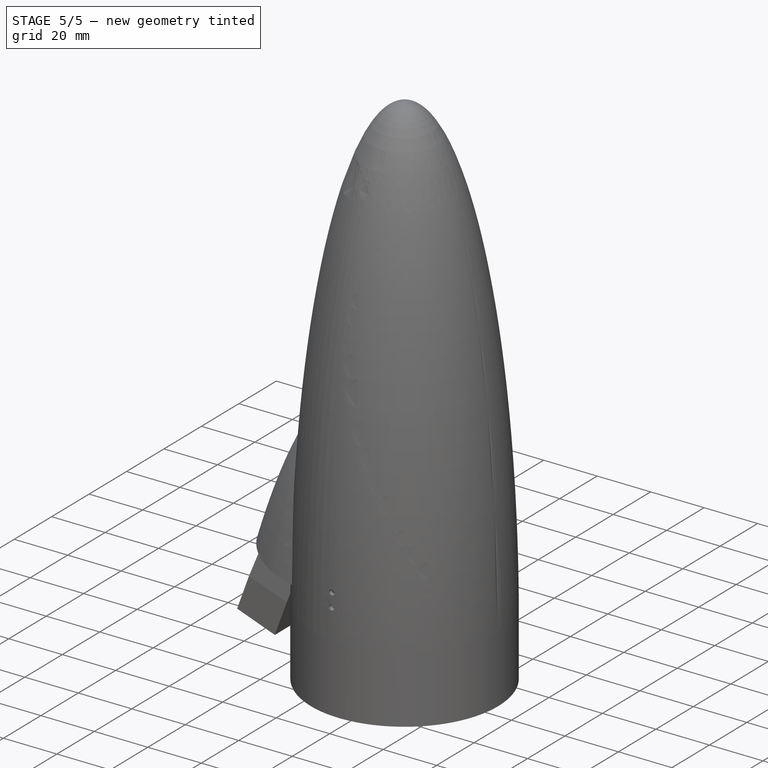
[diagram: stage 5 of 5 — iso view after this stage's code; geometry added in this stage tinted green]
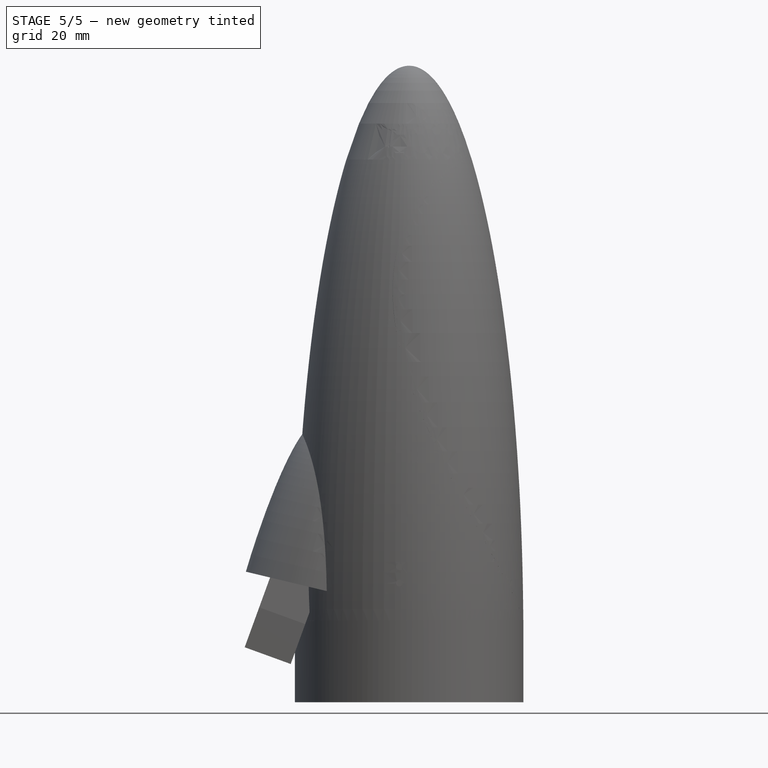
[diagram: stage 5 of 5 — front view after this stage's code; geometry added in this stage tinted green]
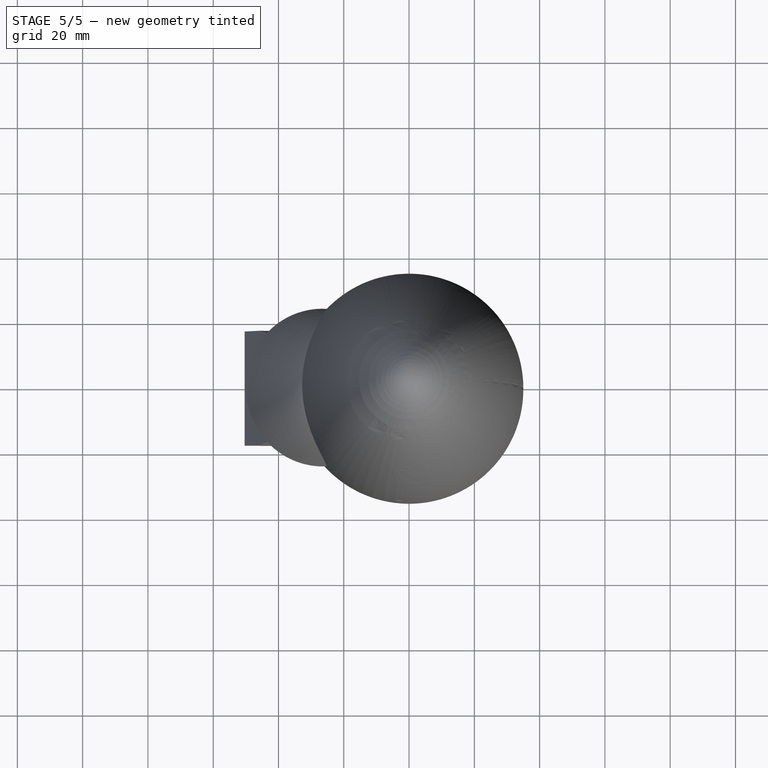
[diagram: stage 5 of 5 — top view after this stage's code; geometry added in this stage tinted green]
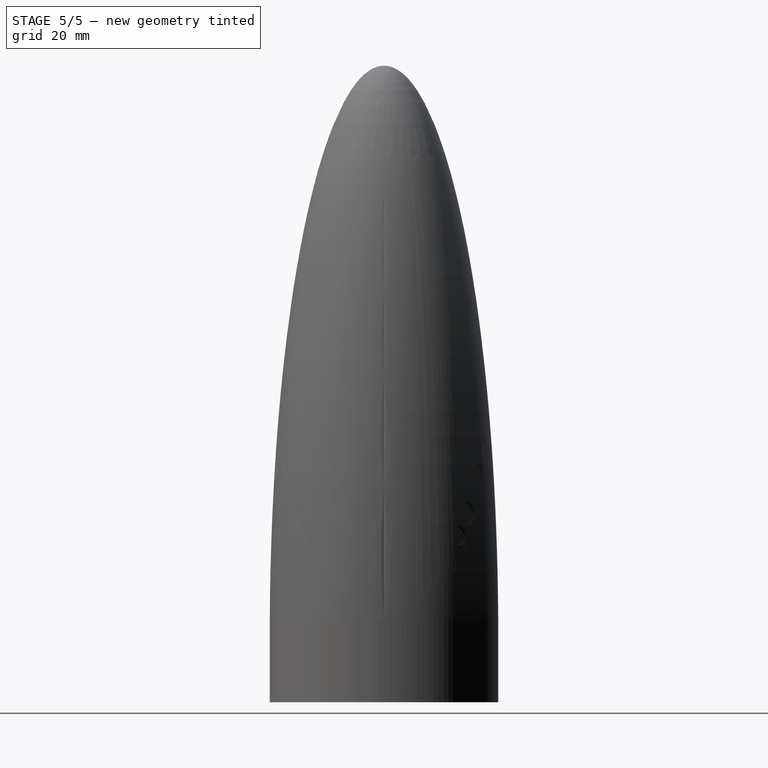
[diagram: stage 5 of 5 — right view after this stage's code; geometry added in this stage tinted green]
FEATURE [Sketcher::SketchObject] Sketch066
  Placement = pos=(0,0,0) rot=(1,0,0;1.5708rad)
  sketch-geometry (20):
    g0: LineSegment StartX=33.5 StartY=40 StartZ=0 EndX=33.5 EndY=30 EndZ=0
    g1: LineSegment StartX=35 StartY=-10 StartZ=0 EndX=35 EndY=40 EndZ=0
    g2: LineSegment StartX=33.5 StartY=30 StartZ=0 EndX=34 EndY=0 EndZ=0
    g3: LineSegment [constr] StartX=30.3319 StartY=40 StartZ=0 EndX=34.2664 EndY=40 EndZ=0
    g4: ArcOfEllipse CenterX=0 CenterY=34.6846 CenterZ=0 NormalX=0 NormalY=0 NormalZ=1 MajorRadius=175.315 MinorRadius=35.0161 AngleXU=-1.5708 StartAngle=1.60112 EndAngle=3.14159
    g5: LineSegment [constr] StartX=0 StartY=-140.631 StartZ=0 EndX=0 EndY=210 EndZ=0
    g6: LineSegment [constr] StartX=35.0161 StartY=34.6846 StartZ=0 EndX=-35.0161 EndY=34.6846 EndZ=0
    g7: GeomPoint [constr] X=0 Y=-137.098 Z=0
    g8: GeomPoint [constr] X=0 Y=206.467 Z=0
    g9: ArcOfCircle CenterX=0 CenterY=193 CenterZ=0 NormalX=0 NormalY=0 NormalZ=1 Radius=17 StartAngle=1.5708 EndAngle=1.5708
    g10: GeomPoint [constr] X=-1e-12 Y=210 Z=0
    g11: ArcOfCircle CenterX=0 CenterY=193 CenterZ=0 NormalX=0 NormalY=0 NormalZ=1 Radius=15 StartAngle=1.5708 EndAngle=1.5708
    g12: ArcOfEllipse CenterX=0 CenterY=34.6846 CenterZ=0 NormalX=0 NormalY=0 NormalZ=1 MajorRadius=173.315 MinorRadius=33.5158 AngleXU=1.5708 StartAngle=4.74306 EndAngle=6.28319
    g13: LineSegment [constr] StartX=0 StartY=208 StartZ=0 EndX=0 EndY=-138.631 EndZ=0
    g14: LineSegment [constr] StartX=-33.5158 StartY=34.6846 StartZ=0 EndX=33.5158 EndY=34.6846 EndZ=0
    g15: GeomPoint [constr] X=0 Y=204.728 Z=0
    g16: GeomPoint [constr] X=0 Y=-135.359 Z=0
    g17: LineSegment StartX=0 StartY=210 StartZ=0 EndX=0 EndY=208 EndZ=0
    g18: LineSegment StartX=34 StartY=0 StartZ=0 EndX=34 EndY=-10 EndZ=0
    g19: LineSegment StartX=34 StartY=-10 StartZ=0 EndX=35 EndY=-10 EndZ=0
  constraints (40):
    c: Vertical(g0)
    c: Vertical(g1)
    c: DistanceX(g-1,g1) = 35
    c: Coincident(g0,g2)
    c: DistanceY(g2,g0) = 30
    c: Horizontal(g3)
    c: InternalAlignment(g5-g8 -> g4) x4
    c: Vertical(g5)
    c: PointOnObject(g4,g-2)
    c: Coincident(g4,g1)
    c: PointOnObject(g9,g-2)
    c: PointOnObject(g9,g-2)
    c: Coincident(g4,g9)
    c: PointOnObject(g10,g4)
    c: PointOnObject(g10,g9)
    c: Tangent(g4,g9,g10) = -1.5708
    c: DistanceY(g-1,g5) = 210
    c: PointOnObject(g1,g3)
    c: PointOnObject(g0,g3)
    c: DistanceY(g-1,g3) = 40
    c: Radius(g9) = 17
    c: Coincident(g11,g9)
    c: PointOnObject(g11,g-2)
    c: Radius(g11) = 15
    c: InternalAlignment(g13-g16 -> g12) x4
    c: Vertical(g13)
    c: Coincident(g12,g4)
    c: Coincident(g12,g11)
    c: Coincident(g12,g0)
    c: DistanceX(g0,g1) = 1.5
    c: Coincident(g17,g5)
    c: Coincident(g17,g11)
    c: Distance(g11,g4) = 2
    c: DistanceY(g1,g1) = 50
    c: Coincident(g18,g2)
    c: Vertical(g18)
    c: Coincident(g19,g18)
    c: Coincident(g19,g1)
    c: Horizontal(g19)
    c: DistanceX(g19,g19) = 1
FEATURE [PartDesign::Revolution] Revolution002  label="Grundform001"
  Angle = 360
  Axis = (0,0,1)
  Base = (0,0,0)
  Placement = pos=(0,0,0) rot=(1,0,0;1.5708rad)
  ReferenceAxis = -> Sketch066 [V_Axis]
  Reversed = true
  Sketch = -> Sketch066
FEATURE [Sketcher::SketchObject] Sketch067
  Placement = pos=(0,0,0) rot=(1,0,0;1.5708rad)
  sketch-geometry (7):
    g0: LineSegment [constr] StartX=16.3825 StartY=177.294 StartZ=0 EndX=45 EndY=-46.1806 EndZ=0
    g1: ArcOfEllipse CenterX=25 CenterY=110 CenterZ=0 NormalX=0 NormalY=0 NormalZ=1 MajorRadius=72.0329 MinorRadius=38 AngleXU=1.5708 StartAngle=3.37973 EndAngle=6.52132
    g2: LineSegment [constr] StartX=25 StartY=182.033 StartZ=0 EndX=25 EndY=37.9671 EndZ=0
    g3: LineSegment [constr] StartX=-13 StartY=110 StartZ=0 EndX=63 EndY=110 EndZ=0
    g4: GeomPoint [constr] X=25 Y=171.194 Z=0
    g5: GeomPoint [constr] X=25 Y=48.8058 Z=0
    g6: LineSegment StartX=16.036 StartY=180 StartZ=0 EndX=33.964 EndY=40 EndZ=0
  constraints (12):
    c: DistanceX(g-1,g0) = 45
    c: InternalAlignment(g2-g5 -> g1) x4
    c: PointOnObject(g1,g0)
    c: PointOnObject(g1,g0)
    c: PointOnObject(g1,g0)
    c: Vertical(g2)
    c: DistanceY(g1,g1) = 140
    c: DistanceY(g-1,g1) = 180
    c: DistanceX(g1,g3) = 38
    c: Coincident(g6,g1)
    c: Coincident(g6,g1)
    c: DistanceX(g-1,g1) = 25
FEATURE [PartDesign::Revolution] Revolution003  label="Ei001"
  Angle = 360
  Axis = (28.6175,0,-223.475)
  Base = (16.3825,0,177.294)
  Placement = pos=(0,0,0) rot=(1,0,0;1.5708rad)
  ReferenceAxis = -> Sketch067 [Axis0]
  Sketch = -> Sketch067
FEATURE [Part::MultiCommon] Common  label="G-Türe"
  Shapes = -> [Revolution002,Revolution003]
FEATURE [Sketcher::SketchObject] Sketch097
  Placement = pos=(0,0,175) rot=(0,0,1;0rad)
  sketch-geometry (4):
    g0: LineSegment StartX=10.1 StartY=2.45 StartZ=0 EndX=14.9 EndY=3.45 EndZ=0
    g1: LineSegment StartX=14.9 StartY=3.45 StartZ=0 EndX=14.9 EndY=-3.45 EndZ=0
    g2: LineSegment StartX=14.9 StartY=-3.45 StartZ=0 EndX=10.1 EndY=-2.45 EndZ=0
    g3: LineSegment StartX=10.1 StartY=-2.45 StartZ=0 EndX=10.1 EndY=2.45 EndZ=0
  constraints (12):
    c: Coincident(g0,g1)
    c: Vertical(g1)
    c: Coincident(g1,g2)
    c: Coincident(g2,g3)
    c: Coincident(g3,g0)
    c: Vertical(g3)
    c: Symmetric(g0,g2,g-1)
    c: Symmetric(g0,g1,g-1)
    c: DistanceY(g1,g1) = 6.9
    c: DistanceY(g3,g3) = 4.9
    c: DistanceX(g0,g0) = 4.8
    c: DistanceX(g-1,g0) = 10.1
FEATURE [PartDesign::Pad] Pad011
  Length = 10
  Length2 = 100
  Placement = pos=(0,0,175) rot=(0,0,1;0rad)
  Sketch = -> Sketch097
  Type = 0
FEATURE [Sketcher::SketchObject] Sketch098
  Placement = pos=(0,0,0) rot=(1,0,0;1.5708rad)
  sketch-geometry (4):
    g0: LineSegment StartX=8.9111 StartY=181.925 StartZ=0 EndX=17.0039 EndY=184.442 EndZ=0
    g1: LineSegment StartX=17.0039 StartY=184.442 StartZ=0 EndX=16.7822 EndY=189.793 EndZ=0
    g2: LineSegment StartX=16.7822 StartY=189.793 StartZ=0 EndX=6.17439 EndY=189.793 EndZ=0
    g3: LineSegment StartX=6.17439 StartY=189.793 StartZ=0 EndX=8.9111 EndY=181.925 EndZ=0
  constraints (5):
    c: Coincident(g0,g1)
    c: Coincident(g1,g2)
    c: Horizontal(g2)
    c: Coincident(g2,g3)
    c: Coincident(g0,g3)
FEATURE [PartDesign::Pad] Pad012
  Length = 10
  Length2 = 100
  Midplane = true
  Placement = pos=(0,0,0) rot=(1,0,0;1.5708rad)
  Sketch = -> Sketch098
  Type = 0
FEATURE [Part::Cut] Cut008
  Base = -> Pad011
  Tool = -> Pad012
FEATURE [Sketcher::SketchObject] Sketch099
  Placement = pos=(0,0,0) rot=(1,0,0;1.5708rad)
  sketch-geometry (7):
    g0: LineSegment [constr] StartX=16.3825 StartY=177.294 StartZ=0 EndX=45 EndY=-46.1806 EndZ=0
    g1: ArcOfEllipse CenterX=25 CenterY=110 CenterZ=0 NormalX=0 NormalY=0 NormalZ=1 MajorRadius=72.0329 MinorRadius=38 AngleXU=1.5708 StartAngle=3.37973 EndAngle=6.52132
    g2: LineSegment [constr] StartX=25 StartY=182.033 StartZ=0 EndX=25 EndY=37.9671 EndZ=0
    g3: LineSegment [constr] StartX=-13 StartY=110 StartZ=0 EndX=63 EndY=110 EndZ=0
    g4: GeomPoint [constr] X=25 Y=171.194 Z=0
    g5: GeomPoint [constr] X=25 Y=48.8058 Z=0
    g6: LineSegment StartX=16.036 StartY=180 StartZ=0 EndX=33.964 EndY=40 EndZ=0
  constraints (12):
    c: DistanceX(g-1,g0) = 45
    c: InternalAlignment(g2-g5 -> g1) x4
    c: PointOnObject(g1,g0)
    c: PointOnObject(g1,g0)
    c: PointOnObject(g1,g0)
    c: Vertical(g2)
    c: DistanceY(g1,g1) = 140
    c: DistanceY(g-1,g1) = 180
    c: DistanceX(g1,g3) = 38
    c: Coincident(g6,g1)
    c: Coincident(g6,g1)
    c: DistanceX(g-1,g1) = 25
FEATURE [PartDesign::Revolution] Revolution015  label="Ei005"
  Angle = 360
  Axis = (28.6175,0,-223.475)
  Base = (16.3825,0,177.294)
  Placement = pos=(0,0,0) rot=(1,0,0;1.5708rad)
  ReferenceAxis = -> Sketch099 [Axis0]
  Sketch = -> Sketch099
FEATURE [Sketcher::SketchObject] Sketch100
  Placement = pos=(0,0,0) rot=(1,0,0;1.5708rad)
  sketch-geometry (7):
    g0: LineSegment StartX=35 StartY=-10.1123 StartZ=0 EndX=35 EndY=39.8877 EndZ=0
    g1: ArcOfEllipse CenterX=0 CenterY=34.659 CenterZ=0 NormalX=0 NormalY=0 NormalZ=1 MajorRadius=175.341 MinorRadius=35.0156 AngleXU=-1.5708 StartAngle=1.60062 EndAngle=3.14159
    g2: LineSegment [constr] StartX=35.0156 StartY=34.659 StartZ=0 EndX=-35.0156 EndY=34.659 EndZ=0
    g3: GeomPoint [constr] X=0 Y=-137.15 Z=0
    g4: GeomPoint [constr] X=0 Y=206.468 Z=0
    g5: LineSegment StartX=35 StartY=-10.1123 StartZ=0 EndX=0 EndY=-10.1123 EndZ=0
    g6: LineSegment StartX=0 StartY=-10.1123 StartZ=0 EndX=0 EndY=210 EndZ=0
  constraints (14):
    c: Vertical(g0)
    c: DistanceX(g-1,g0) = 35
    c: InternalAlignment(g2,g1)
    c: InternalAlignment(g3,g1)
    c: InternalAlignment(g4,g1)
    c: PointOnObject(g1,g-2)
    c: Coincident(g1,g0)
    c: DistanceY(g0,g0) = 50
    c: Coincident(g0,g5)
    c: Horizontal(g5)
    c: Coincident(g5,g6)
    c: Vertical(g6)
    c: PointOnObject(g1,g-2)
    c: Coincident(g6,g1)
FEATURE [PartDesign::Revolution] Revolution016
  Angle = 360
  Axis = (0,0,1)
  Base = (0,0,0)
  Placement = pos=(0,0,0) rot=(1,0,0;1.5708rad)
  ReferenceAxis = -> Sketch100 [V_Axis]
  Reversed = true
  Sketch = -> Sketch100
FEATURE [Part::MultiCommon] Common008
  Shapes = -> [Revolution016,Revolution015]
FEATURE [Sketcher::SketchObject] Sketch101
  Placement = pos=(0,0,0) rot=(1,0,0;1.5708rad)
  sketch-geometry (4):
    g0: ArcOfCircle CenterX=12.0256 CenterY=142.273 CenterZ=0 NormalX=0 NormalY=0 NormalZ=1 Radius=32.7152 StartAngle=0.939715 EndAngle=1.83912
    g1: LineSegment StartX=3.35218 StartY=173.818 StartZ=0 EndX=6.44016 EndY=192.878 EndZ=0
    g2: LineSegment StartX=6.44016 StartY=192.878 StartZ=0 EndX=34.7837 EndY=191.076 EndZ=0
    g3: LineSegment StartX=34.7837 StartY=191.076 StartZ=0 EndX=31.3282 EndY=168.687 EndZ=0
  constraints (4):
    c: Coincident(g0,g1)
    c: Coincident(g1,g2)
    c: Coincident(g2,g3)
    c: Coincident(g3,g0)
FEATURE [PartDesign::Pad] Pad013
  Length = 100
  Length2 = 100
  Midplane = true
  Placement = pos=(0,0,0) rot=(1,0,0;1.5708rad)
  Sketch = -> Sketch101
  Type = 0
FEATURE [Part::MultiCommon] Common009
  Shapes = -> [Common008,Pad013]
FEATURE [Sketcher::SketchObject] Sketch102
  sketch-geometry (2):
    g0: ArcOfCircle CenterX=60.0474 CenterY=0 CenterZ=0 NormalX=0 NormalY=0 NormalZ=1 Radius=51.1889 StartAngle=2.46443 EndAngle=3.81875
    g1: LineSegment StartX=20.1531 StartY=32.0741 StartZ=0 EndX=20.1531 EndY=-32.0741 EndZ=0
  constraints (4):
    c: PointOnObject(g0,g-1)
    c: Symmetric(g0,g0,g-1)
    c: Coincident(g0,g1)
    c: Coincident(g1,g0)
FEATURE [PartDesign::Pad] Pad014
  Length = 200
  Length2 = 100
  Sketch = -> Sketch102
  Type = 0
FEATURE [Part::MultiCommon] Common010
  Shapes = -> [Common009,Pad014]
FEATURE [Part::MultiFuse] Fusion001
  Shapes = -> [Common010,Cut008]
FEATURE [Sketcher::SketchObject] Sketch103
  Placement = pos=(0,0,0) rot=(1,0,0;1.5708rad)
  sketch-geometry (4):
    g0: ArcOfCircle CenterX=-2.81812 CenterY=144.399 CenterZ=0 NormalX=0 NormalY=0 NormalZ=1 Radius=37.5539 StartAngle=0.482326 EndAngle=1.54332
    g1: LineSegment StartX=-1.78643 StartY=181.939 StartZ=0 EndX=20.8828 EndY=193.647 EndZ=0
    g2: LineSegment StartX=20.8828 StartY=193.647 StartZ=0 EndX=33.3239 EndY=162.801 EndZ=0
    g3: LineSegment StartX=33.3239 StartY=162.801 StartZ=0 EndX=30.4515 EndY=161.818 EndZ=0
  constraints (4):
    c: Coincident(g0,g1)
    c: Coincident(g1,g2)
    c: Coincident(g2,g3)
    c: Coincident(g3,g0)
FEATURE [PartDesign::Pad] Pad015
  Length = 50
  Length2 = 100
  Midplane = true
  Placement = pos=(0,0,0) rot=(1,0,0;1.5708rad)
  Sketch = -> Sketch103
  Type = 0
FEATURE [Part::MultiCommon] Common011  label="G-Türhaken"
  Shapes = -> [Pad015,Fusion001]
FEATURE [Part::Cut] Cut009
  Base = -> Common011
  Tool = -> Revolution017
FEATURE [Part::MultiFuse] Fusion002  label="H-Türe"
  Shapes = -> [Cut009,Common]
FEATURE [Part::MultiFuse] Fusion003  label="I-Türe"
  Shapes = -> [Fusion002,Pad016]
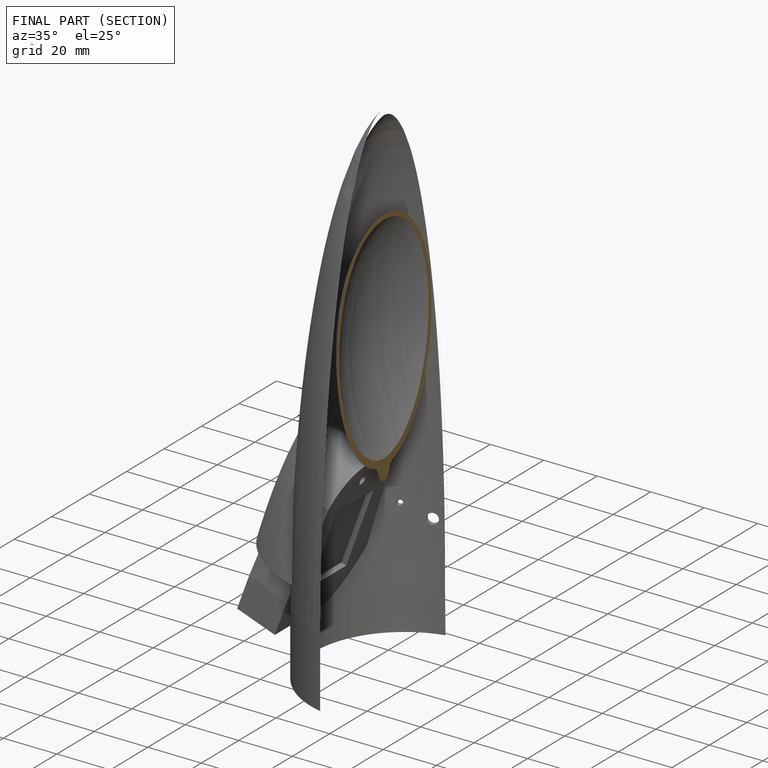
[diagram: finished part — half-section view (interior)]
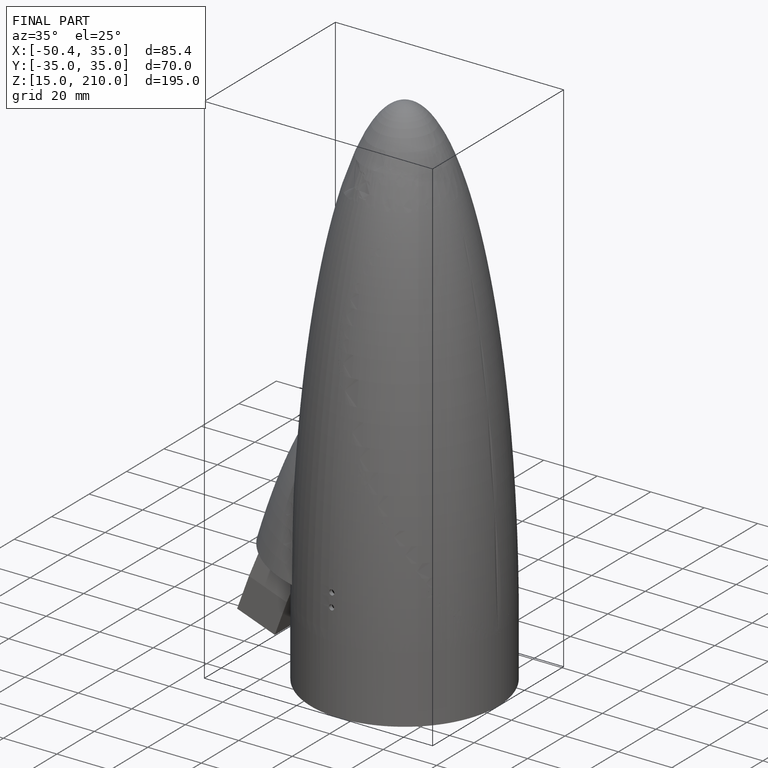
[diagram: finished part — iso view with bounding-box wireframe]
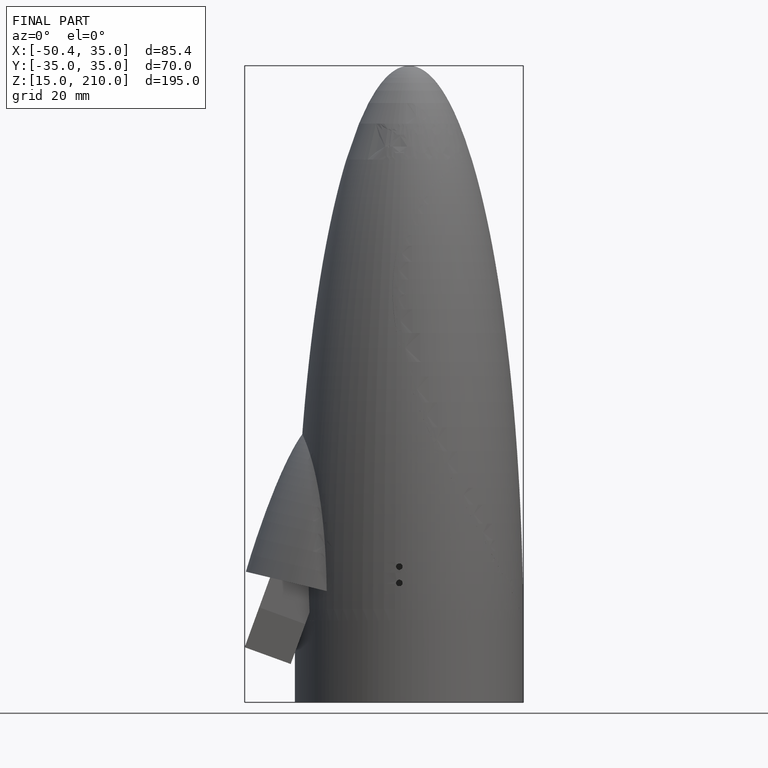
[diagram: finished part — front view with bounding-box wireframe]
